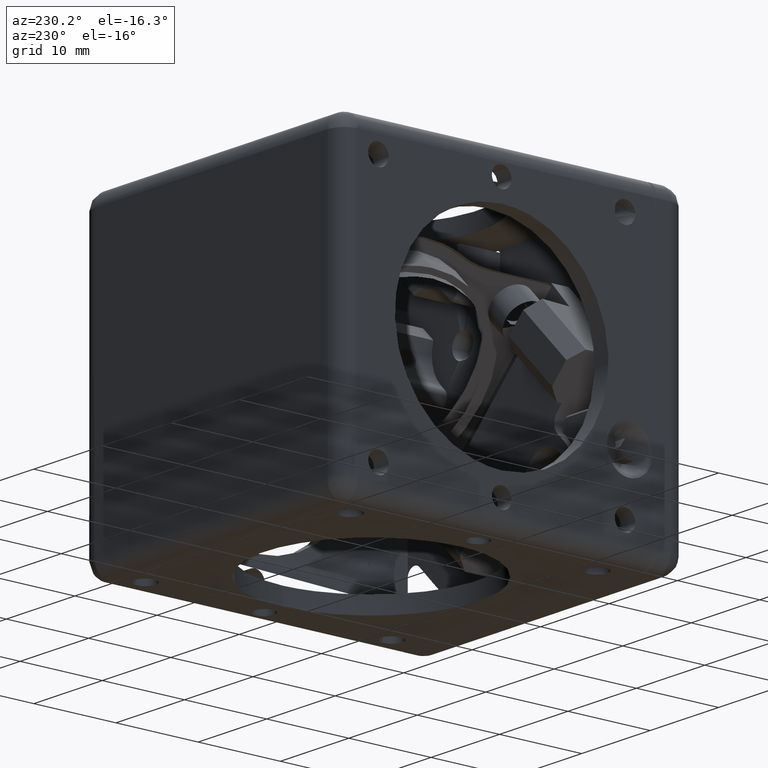
[diagram: clean part render]
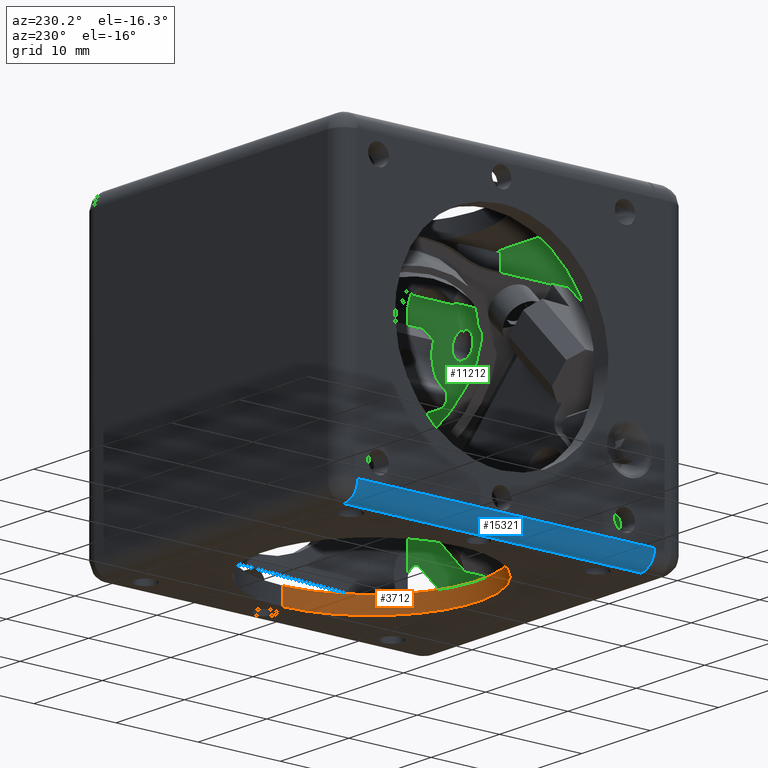
[diagram: same view with three faces highlighted in distinct colors, each labeled with its STEP entity id]
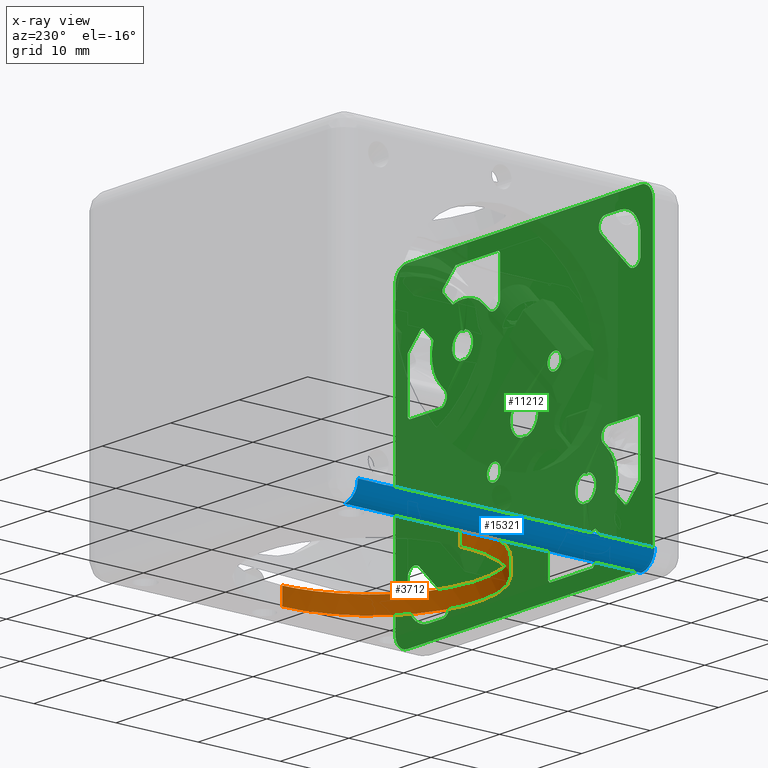
[diagram: x-ray of the same camera — body ghosted, the three highlighted faces saturated]
A machine part, auxiliary view with three faces highlighted in distinct colors.
The next image is the same camera in x-ray (body ghosted, the three faces saturated) — at least one of them is partly hidden behind the body in this view.
Their STEP definitions:

[orange] entity #3712 — the highlighted face is a freeform B-spline surface patch.
#538 = CARTESIAN_POINT ( 'NONE',  ( -13.00000000000010836, -5.400000000000005684, -19.25499999999988887 ) ) ;
#696 = CARTESIAN_POINT ( 'NONE',  ( -13.00000000000000533, -5.400000000000005684, -16.79499999999991644 ) ) ;
#1725 = CARTESIAN_POINT ( 'NONE',  ( 13.00000000000000000, 20.60000000000000142, -19.05000000000000071 ) ) ;
#1950 = EDGE_CURVE ( 'NONE', #9663, #7890, #5453, .T. ) ;
#2693 = CARTESIAN_POINT ( 'NONE',  ( -13.00000000000000000, 20.60000000000000142, -17.00000000000000000 ) ) ;
#2836 = CARTESIAN_POINT ( 'NONE',  ( -13.00000000000000000, 20.60000000000000142, -19.25500000000000256 ) ) ;
#2914 = CARTESIAN_POINT ( 'NONE',  ( -13.00000000000000000, 20.60000000000000142, -16.79500000000000171 ) ) ;
#3712 = ADVANCED_FACE ( 'NONE', ( #10164 ), #14291, .T. ) ;
#3796 = VERTEX_POINT ( 'NONE', #11748 ) ;
#4357 = B_SPLINE_CURVE_WITH_KNOTS ( 'NONE', 1,
 ( #10420, #15267 ),
 .UNSPECIFIED., .F., .F.,
 ( 2, 2 ),
 ( 0.000000000000000000, 1.000000000000000000 ),
 .UNSPECIFIED. ) ;
#4688 = ORIENTED_EDGE ( 'NONE', *, *, #6523, .T. ) ;
#4781 = CARTESIAN_POINT ( 'NONE',  ( 13.00000000000000000, 20.60000000000000142, -17.00000000000000000 ) ) ;
#5047 = ORIENTED_EDGE ( 'NONE', *, *, #1950, .T. ) ;
#5278 = CARTESIAN_POINT ( 'NONE',  ( 13.00000000000000000, 20.60000000000000142, -17.00000000000000000 ) ) ;
#5453 =( BOUNDED_CURVE ( )  B_SPLINE_CURVE ( 3, ( #1725, #10246, #5530, #11289 ),
 .UNSPECIFIED., .F., .F. ) 
 B_SPLINE_CURVE_WITH_KNOTS ( ( 4, 4 ),
 ( 0.000000000000000000, 1.000000000000000000 ),
 .UNSPECIFIED. ) 
 CURVE ( )  GEOMETRIC_REPRESENTATION_ITEM ( )  RATIONAL_B_SPLINE_CURVE ( ( 1.000000000000000000, 0.3333333333333330373, 0.3333333333333330373, 1.000000000000000000 ) ) 
 REPRESENTATION_ITEM ( '' )  );
#5530 = CARTESIAN_POINT ( 'NONE',  ( -13.00000000000009948, -5.400000000000005684, -19.04999999999989413 ) ) ;
#6523 = EDGE_CURVE ( 'NONE', #7890, #9676, #4357, .T. ) ;
#7123 = EDGE_CURVE ( 'NONE', #3796, #9663, #13717, .T. ) ;
#7890 = VERTEX_POINT ( 'NONE', #11369 ) ;
#8277 = CARTESIAN_POINT ( 'NONE',  ( 13.00000000000000000, 20.60000000000000142, -19.05000000000000071 ) ) ;
#8662 = CARTESIAN_POINT ( 'NONE',  ( 13.00000000000000000, 20.60000000000000142, -19.05000000000000071 ) ) ;
#8967 = CARTESIAN_POINT ( 'NONE',  ( 12.99999999999989875, -5.400000000000005684, -19.25500000000000966 ) ) ;
#9025 = CARTESIAN_POINT ( 'NONE',  ( -13.00000000000000000, 20.60000000000000142, -17.00000000000000000 ) ) ;
#9087 = EDGE_LOOP ( 'NONE', ( #12175, #15154, #5047, #4688 ) ) ;
#9663 = VERTEX_POINT ( 'NONE', #8662 ) ;
#9676 = VERTEX_POINT ( 'NONE', #2693 ) ;
#10164 = FACE_OUTER_BOUND ( 'NONE', #9087, .T. ) ;
#10246 = CARTESIAN_POINT ( 'NONE',  ( 12.99999999999989519, -5.400000000000005684, -19.05000000000001137 ) ) ;
#10324 = CARTESIAN_POINT ( 'NONE',  ( 12.99999999999989875, -5.400000000000005684, -16.79500000000000881 ) ) ;
#10420 = CARTESIAN_POINT ( 'NONE',  ( -13.00000000000000000, 20.60000000000000142, -19.05000000000000071 ) ) ;
#11289 = CARTESIAN_POINT ( 'NONE',  ( -13.00000000000000000, 20.60000000000000142, -19.05000000000000071 ) ) ;
#11369 = CARTESIAN_POINT ( 'NONE',  ( -13.00000000000000000, 20.60000000000000142, -19.05000000000000071 ) ) ;
#11748 = CARTESIAN_POINT ( 'NONE',  ( 13.00000000000000000, 20.60000000000000142, -17.00000000000000000 ) ) ;
#12175 = ORIENTED_EDGE ( 'NONE', *, *, #13397, .T. ) ;
#12709 = CARTESIAN_POINT ( 'NONE',  ( 13.00000000000000000, 20.60000000000000142, -19.25500000000000256 ) ) ;
#13397 = EDGE_CURVE ( 'NONE', #9676, #3796, #14104, .T. ) ;
#13656 = CARTESIAN_POINT ( 'NONE',  ( 12.99999999999989875, -5.400000000000005684, -17.00000000000000711 ) ) ;
#13717 = B_SPLINE_CURVE_WITH_KNOTS ( 'NONE', 1,
 ( #4781, #8277 ),
 .UNSPECIFIED., .F., .F.,
 ( 2, 2 ),
 ( 0.000000000000000000, 1.000000000000000000 ),
 .UNSPECIFIED. ) ;
#13879 = CARTESIAN_POINT ( 'NONE',  ( -13.00000000000001599, -5.400000000000005684, -16.99999999999991473 ) ) ;
#14104 =( BOUNDED_CURVE ( )  B_SPLINE_CURVE ( 3, ( #9025, #13879, #13656, #5278 ),
 .UNSPECIFIED., .F., .F. ) 
 B_SPLINE_CURVE_WITH_KNOTS ( ( 4, 4 ),
 ( 0.000000000000000000, 1.000000000000000000 ),
 .UNSPECIFIED. ) 
 CURVE ( )  GEOMETRIC_REPRESENTATION_ITEM ( )  RATIONAL_B_SPLINE_CURVE ( ( 1.000000000000000000, 0.3333333333333329818, 0.3333333333333329818, 1.000000000000000000 ) ) 
 REPRESENTATION_ITEM ( '' )  );
#14291 =( BOUNDED_SURFACE ( )  B_SPLINE_SURFACE ( 1, 3, ( 
 ( #2836, #538, #8967, #12709 ),
 ( #2914, #696, #10324, #15170 ) ),
 .UNSPECIFIED., .F., .F., .F. ) 
 B_SPLINE_SURFACE_WITH_KNOTS ( ( 2, 2 ),
 ( 4, 4 ),
 ( 0.000000000000000000, 1.000000000000000000 ),
 ( 0.000000000000000000, 1.000000000000000000 ),
 .UNSPECIFIED. ) 
 GEOMETRIC_REPRESENTATION_ITEM ( )  RATIONAL_B_SPLINE_SURFACE ( (
 ( 1.000000000000000000, 0.3333333333333329818, 0.3333333333333329818, 1.000000000000000000),
 ( 1.000000000000000000, 0.3333333333333329818, 0.3333333333333329818, 1.000000000000000000) ) ) 
 REPRESENTATION_ITEM ( '' )  SURFACE ( )  );
#15154 = ORIENTED_EDGE ( 'NONE', *, *, #7123, .T. ) ;
#15170 = CARTESIAN_POINT ( 'NONE',  ( 13.00000000000000000, 20.60000000000000142, -16.79500000000000171 ) ) ;
#15267 = CARTESIAN_POINT ( 'NONE',  ( -13.00000000000000000, 20.60000000000000142, -17.00000000000000000 ) ) ;

[blue] entity #15321 — the highlighted face is a freeform B-spline surface patch.
#839 = CARTESIAN_POINT ( 'NONE',  ( -18.65143750635702702, 1.999999999999999112, -18.27688607091769413 ) ) ;
#999 = CARTESIAN_POINT ( 'NONE',  ( -17.05000000000000071, 2.000000000000000000, -19.05000000000000071 ) ) ;
#1030 = CARTESIAN_POINT ( 'NONE',  ( -18.22157287525379488, 38.10000000000012221, -19.05000000000002913 ) ) ;
#1168 = CARTESIAN_POINT ( 'NONE',  ( -19.05000000000000071, 2.000000000000000000, -17.05000000000000071 ) ) ;
#1480 = EDGE_CURVE ( 'NONE', #4510, #7824, #7828, .T. ) ;
#1524 = CARTESIAN_POINT ( 'NONE',  ( -17.05000000000000071, 2.000000000000000000, -19.05000000000000071 ) ) ;
#1841 = ORIENTED_EDGE ( 'NONE', *, *, #7580, .T. ) ;
#2094 = ORIENTED_EDGE ( 'NONE', *, *, #1480, .T. ) ;
#2224 = CARTESIAN_POINT ( 'NONE',  ( -17.05000000000000071, 38.10000000000000142, -19.05000000000000071 ) ) ;
#2271 = CARTESIAN_POINT ( 'NONE',  ( -17.05000000000000071, 38.10000000000000142, -19.05000000000000071 ) ) ;
#2398 = CARTESIAN_POINT ( 'NONE',  ( -18.27698961838937919, 1.999999999999998668, -18.65154105382849181 ) ) ;
#2405 =( BOUNDED_CURVE ( )  B_SPLINE_CURVE ( 3, ( #9534, #11769, #1030, #2224 ),
 .UNSPECIFIED., .F., .F. ) 
 B_SPLINE_CURVE_WITH_KNOTS ( ( 4, 4 ),
 ( 0.000000000000000000, 1.000000000000000000 ),
 .UNSPECIFIED. ) 
 CURVE ( )  GEOMETRIC_REPRESENTATION_ITEM ( )  RATIONAL_B_SPLINE_CURVE ( ( 1.000000000000000000, 0.8047378541243609407, 0.8047378541243609407, 1.000000000000000000 ) ) 
 REPRESENTATION_ITEM ( '' )  );
#3284 = FACE_OUTER_BOUND ( 'NONE', #12149, .T. ) ;
#3494 = EDGE_CURVE ( 'NONE', #7824, #13342, #2405, .T. ) ;
#3577 = CARTESIAN_POINT ( 'NONE',  ( -19.05000000000000426, 2.000000000000000000, -17.31502475384923301 ) ) ;
#4090 = EDGE_CURVE ( 'NONE', #4510, #6837, #15137, .T. ) ;
#4510 = VERTEX_POINT ( 'NONE', #12734 ) ;
#4716 = CARTESIAN_POINT ( 'NONE',  ( -17.05000000000000071, 2.000000000000000000, -19.05000000000000071 ) ) ;
#5913 = CARTESIAN_POINT ( 'NONE',  ( -19.05000000000002913, 38.10000000000011511, -18.22157287525379488 ) ) ;
#5969 = CARTESIAN_POINT ( 'NONE',  ( -18.79647383030667385, 1.999999999999999556, -18.06008239373556279 ) ) ;
#5995 = CARTESIAN_POINT ( 'NONE',  ( -19.05000000000000071, 38.10000000000000142, -17.05000000000000071 ) ) ;
#6045 = CARTESIAN_POINT ( 'NONE',  ( -17.05000000000000071, 2.000000000000000000, -19.05000000000000071 ) ) ;
#6208 = CARTESIAN_POINT ( 'NONE',  ( -17.05000000000000071, 38.10000000000000142, -19.05000000000000071 ) ) ;
#6837 = VERTEX_POINT ( 'NONE', #4716 ) ;
#6965 = CARTESIAN_POINT ( 'NONE',  ( -19.05000000000000071, 38.10000000000000142, -17.05000000000000071 ) ) ;
#7117 = CARTESIAN_POINT ( 'NONE',  ( -17.05000000000000071, 38.10000000000000142, -19.05000000000000071 ) ) ;
#7580 = EDGE_CURVE ( 'NONE', #13342, #6837, #10105, .T. ) ;
#7824 = VERTEX_POINT ( 'NONE', #8824 ) ;
#7828 = B_SPLINE_CURVE_WITH_KNOTS ( 'NONE', 1,
 ( #1168, #6965 ),
 .UNSPECIFIED., .F., .F.,
 ( 2, 2 ),
 ( 0.000000000000000000, 1.000000000000000000 ),
 .UNSPECIFIED. ) ;
#8073 = CARTESIAN_POINT ( 'NONE',  ( -18.22157287525379488, 38.10000000000011511, -19.05000000000002913 ) ) ;
#8824 = CARTESIAN_POINT ( 'NONE',  ( -19.05000000000000071, 38.10000000000000142, -17.05000000000000071 ) ) ;
#9534 = CARTESIAN_POINT ( 'NONE',  ( -19.05000000000000071, 38.10000000000000142, -17.05000000000000071 ) ) ;
#9628 = ORIENTED_EDGE ( 'NONE', *, *, #3494, .T. ) ;
#10105 = B_SPLINE_CURVE_WITH_KNOTS ( 'NONE', 1,
 ( #6208, #1524 ),
 .UNSPECIFIED., .F., .F.,
 ( 2, 2 ),
 ( 0.000000000000000000, 1.000000000000000000 ),
 .UNSPECIFIED. ) ;
#10159 =( BOUNDED_SURFACE ( )  B_SPLINE_SURFACE ( 3, 1, ( 
 ( #999, #2271 ),
 ( #15718, #8073 ),
 ( #11975, #5913 ),
 ( #13096, #5995 ) ),
 .UNSPECIFIED., .F., .F., .F. ) 
 B_SPLINE_SURFACE_WITH_KNOTS ( ( 4, 4 ),
 ( 2, 2 ),
 ( 0.000000000000000000, 1.000000000000000000 ),
 ( 0.000000000000000000, 1.000000000000000000 ),
 .UNSPECIFIED. ) 
 GEOMETRIC_REPRESENTATION_ITEM ( )  RATIONAL_B_SPLINE_SURFACE ( (
 ( 1.000000000000000000, 1.000000000000000000),
 ( 0.8047378541243609407, 0.8047378541243609407),
 ( 0.8047378541243609407, 0.8047378541243609407),
 ( 1.000000000000000000, 1.000000000000000000) ) ) 
 REPRESENTATION_ITEM ( '' )  SURFACE ( )  );
#10840 = CARTESIAN_POINT ( 'NONE',  ( -18.06020348209824178, 1.999999999999998668, -18.79626510837097797 ) ) ;
#11734 = CARTESIAN_POINT ( 'NONE',  ( -18.99904429973850384, 2.000000000000000000, -17.57065133572486459 ) ) ;
#11769 = CARTESIAN_POINT ( 'NONE',  ( -19.05000000000002913, 38.10000000000012221, -18.22157287525379488 ) ) ;
#11975 = CARTESIAN_POINT ( 'NONE',  ( -19.05000000000002913, 1.999999999999991118, -18.22157287525379488 ) ) ;
#12149 = EDGE_LOOP ( 'NONE', ( #2094, #9628, #1841, #15357 ) ) ;
#12734 = CARTESIAN_POINT ( 'NONE',  ( -19.05000000000000071, 2.000000000000000000, -17.05000000000000071 ) ) ;
#12777 = CARTESIAN_POINT ( 'NONE',  ( -19.05000000000000071, 2.000000000000000000, -17.05000000000000071 ) ) ;
#13096 = CARTESIAN_POINT ( 'NONE',  ( -19.05000000000000071, 2.000000000000000000, -17.05000000000000071 ) ) ;
#13342 = VERTEX_POINT ( 'NONE', #7117 ) ;
#14565 = CARTESIAN_POINT ( 'NONE',  ( -17.57053024736218561, 1.999999999999997780, -18.99925302167419616 ) ) ;
#15137 = B_SPLINE_CURVE_WITH_KNOTS ( 'NONE', 3,
 ( #12777, #3577, #11734, #5969, #839, #2398, #10840, #14565, #15687, #6045 ),
 .UNSPECIFIED., .F., .F.,
 ( 4, 2, 2, 2, 4 ),
 ( 0.000000000000000000, 0.2500000000000000000, 0.5000000000000000000, 0.7500000000000000000, 1.000000000000000000 ),
 .UNSPECIFIED. ) ;
#15321 = ADVANCED_FACE ( 'NONE', ( #3284 ), #10159, .T. ) ;
#15357 = ORIENTED_EDGE ( 'NONE', *, *, #4090, .F. ) ;
#15687 = CARTESIAN_POINT ( 'NONE',  ( -17.31540795911881858, 1.999999999999997335, -19.05000000000000071 ) ) ;
#15718 = CARTESIAN_POINT ( 'NONE',  ( -18.22157287525379488, 1.999999999999991118, -19.05000000000002913 ) ) ;

[green] entity #11212 — the highlighted face is a freeform B-spline surface patch.
#12 = B_SPLINE_CURVE_WITH_KNOTS ( 'NONE', 3,
 ( #12501, #13463, #12267, #1590, #8601, #1361, #405, #7553, #14799, #11073 ),
 .UNSPECIFIED., .F., .F.,
 ( 4, 2, 2, 2, 4 ),
 ( 0.000000000000000000, 0.2500000000000000000, 0.5000000000000000000, 0.7500000000000000000, 1.000000000000000000 ),
 .UNSPECIFIED. ) ;
#36 = EDGE_LOOP ( 'NONE', ( #5463, #12454, #12778, #4206, #6084, #10335 ) ) ;
#58 = EDGE_CURVE ( 'NONE', #3520, #6240, #704, .T. ) ;
#66 = CARTESIAN_POINT ( 'NONE',  ( 15.99882722459183171, 2.000000000000000000, -10.89486576310442167 ) ) ;
#79 = CARTESIAN_POINT ( 'NONE',  ( 17.93407825758657737, 2.000000000000000000, -18.57798196982461292 ) ) ;
#105 = CARTESIAN_POINT ( 'NONE',  ( 4.419417382415880446, 2.000000000000000000, -3.419417382415869788 ) ) ;
#129 = CARTESIAN_POINT ( 'NONE',  ( -4.924586598528547299, 1.999999999999999556, 5.292568817002876180 ) ) ;
#184 = EDGE_LOOP ( 'NONE', ( #11297, #9706, #9351, #13871, #12887, #13535, #11439, #3109 ) ) ;
#214 = CARTESIAN_POINT ( 'NONE',  ( 15.29289321881345032, 2.000000000000000000, -11.20710678118654080 ) ) ;
#245 = EDGE_CURVE ( 'NONE', #10950, #760, #7313, .T. ) ;
#282 = CARTESIAN_POINT ( 'NONE',  ( -10.89484637153837809, 1.999999999999999556, 15.99882336735571364 ) ) ;
#297 = CARTESIAN_POINT ( 'NONE',  ( 13.24490824619010176, 2.000000000000000000, 10.41648112144399896 ) ) ;
#306 = CARTESIAN_POINT ( 'NONE',  ( 18.80000000000000071, 2.000000000000000000, -17.05000000000000071 ) ) ;
#338 = VERTEX_POINT ( 'NONE', #12087 ) ;
#348 = CARTESIAN_POINT ( 'NONE',  ( -8.778045875033566148, 2.000000000000000000, -10.50525612106911666 ) ) ;
#370 = CARTESIAN_POINT ( 'NONE',  ( 13.24490824619010176, 2.000000000000000000, 10.41648112144399896 ) ) ;
#384 = CARTESIAN_POINT ( 'NONE',  ( 18.12337079402520601, 2.000000000000000000, -18.45151231561264993 ) ) ;
#388 = CARTESIAN_POINT ( 'NONE',  ( 17.93406732324035957, 2.000000000000000000, 18.57800085085428776 ) ) ;
#392 = CARTESIAN_POINT ( 'NONE',  ( 11.42994804802387243, 2.000000000000000444, 3.934648266542605466 ) ) ;
#404 = EDGE_CURVE ( 'NONE', #14791, #6509, #9698, .T. ) ;
#405 = CARTESIAN_POINT ( 'NONE',  ( 4.501172775385541946, 2.000000000000000000, 11.25882679377334128 ) ) ;
#420 = ORIENTED_EDGE ( 'NONE', *, *, #2672, .T. ) ;
#427 = ORIENTED_EDGE ( 'NONE', *, *, #6972, .T. ) ;
#449 = CARTESIAN_POINT ( 'NONE',  ( 14.73743686707640066, 2.000000000000000000, 11.90900974233029963 ) ) ;
#467 = CARTESIAN_POINT ( 'NONE',  ( 18.57798196982459515, 2.000000000000000000, 17.93407825750138329 ) ) ;
#470 = CARTESIAN_POINT ( 'NONE',  ( 9.182466367103076621, 2.000000000000000000, 7.455256121069106179 ) ) ;
#502 = CARTESIAN_POINT ( 'NONE',  ( 16.75000000000000000, 2.000000000000000000, 3.500000000000079936 ) ) ;
#529 = EDGE_CURVE ( 'NONE', #4327, #10644, #10662, .T. ) ;
#536 = CARTESIAN_POINT ( 'NONE',  ( 10.97201019240084641, 2.000000000000000000, -15.61099598855773607 ) ) ;
#546 = B_SPLINE_CURVE_WITH_KNOTS ( 'NONE', 3,
 ( #9167, #5413, #15057, #7809, #1767, #3110, #7963, #12839, #14980, #1928 ),
 .UNSPECIFIED., .F., .F.,
 ( 4, 2, 2, 2, 4 ),
 ( 0.000000000000000000, 0.2500000000000000000, 0.5000000000000000000, 0.7500000000000000000, 1.000000000000000000 ),
 .UNSPECIFIED. ) ;
#593 = EDGE_CURVE ( 'NONE', #10258, #10061, #6275, .T. ) ;
#596 = B_SPLINE_CURVE_WITH_KNOTS ( 'NONE', 3,
 ( #14036, #3271, #9256, #8060, #14185, #2021, #1941, #10459, #7981, #4399, #8139, #6630, #6783, #906, #11651, #9413, #5509, #5662 ),
 .UNSPECIFIED., .F., .F.,
 ( 4, 2, 2, 2, 2, 2, 2, 2, 4 ),
 ( 0.000000000000000000, 0.1250000000000000000, 0.2500000000000000000, 0.3750000000000000000, 0.5000000000000000000, 0.6250000000000000000, 0.7500000000000000000, 0.8750000000000000000, 1.000000000000000000 ),
 .UNSPECIFIED. ) ;
#619 = CARTESIAN_POINT ( 'NONE',  ( 4.552008299139743031, 2.000000000000000000, -5.419417382415884887 ) ) ;
#625 = CARTESIAN_POINT ( 'NONE',  ( 9.377042698605652760, 2.000000000000000000, 7.493969572927904998 ) ) ;
#626 = CARTESIAN_POINT ( 'NONE',  ( 8.209858229898101101, 2.000000000000000000, 10.31180214708907528 ) ) ;
#639 = CARTESIAN_POINT ( 'NONE',  ( -10.50524949175182066, 2.000000000000000000, -8.778061881126060229 ) ) ;
#646 = CARTESIAN_POINT ( 'NONE',  ( 16.75000000000000000, 2.000000000000000000, 3.500000000000079936 ) ) ;
#664 = CARTESIAN_POINT ( 'NONE',  ( 17.00000000000000000, 2.000000000000000000, -11.91421356237309936 ) ) ;
#704 = B_SPLINE_CURVE_WITH_KNOTS ( 'NONE', 1,
 ( #6537, #13865 ),
 .UNSPECIFIED., .F., .F.,
 ( 2, 2 ),
 ( 0.000000000000000000, 1.000000000000000000 ),
 .UNSPECIFIED. ) ;
#718 = CARTESIAN_POINT ( 'NONE',  ( -10.46654266919572684, 2.000000000000000000, -9.377042698622345185 ) ) ;
#720 = CARTESIAN_POINT ( 'NONE',  ( -17.00000000000000000, 2.000000000000000000, 11.91421356237309936 ) ) ;
#727 = VERTEX_POINT ( 'NONE', #2315 ) ;
#760 = VERTEX_POINT ( 'NONE', #15521 ) ;
#772 = CARTESIAN_POINT ( 'NONE',  ( -8.361083498043575091, 2.000000000000000444, -13.45711095105773936 ) ) ;
#783 = CARTESIAN_POINT ( 'NONE',  ( 12.70858780562324242, 2.000000000000000444, 6.425816652676371810 ) ) ;
#793 = CARTESIAN_POINT ( 'NONE',  ( -15.09099025766980162, 2.000000000000000000, -11.90900974233020015 ) ) ;
#798 = CARTESIAN_POINT ( 'NONE',  ( -10.20157156820013000, 2.000000000000000444, -8.044886510307291516 ) ) ;
#804 = CARTESIAN_POINT ( 'NONE',  ( -18.75557751291433917, 2.000000000000000000, 17.50532469005064584 ) ) ;
#812 = B_SPLINE_CURVE_WITH_KNOTS ( 'NONE', 1,
 ( #6008, #7048 ),
 .UNSPECIFIED., .F., .F.,
 ( 2, 2 ),
 ( 0.000000000000000000, 1.000000000000000000 ),
 .UNSPECIFIED. ) ;
#855 = EDGE_CURVE ( 'NONE', #11263, #338, #14427, .T. ) ;
#878 = CARTESIAN_POINT ( 'NONE',  ( -3.618570669696700381, 2.000000000000000000, 5.032774857609107144 ) ) ;
#906 = CARTESIAN_POINT ( 'NONE',  ( -1.242038906910450269, 2.000000000000000444, -1.621752932558913507 ) ) ;
#919 = CARTESIAN_POINT ( 'NONE',  ( -15.43276981394939362, 2.000000000000000000, 11.06723018605060638 ) ) ;
#926 = CARTESIAN_POINT ( 'NONE',  ( 4.159219733800219920, 2.000000000000000000, -3.444809751980995483 ) ) ;
#940 = B_SPLINE_CURVE_WITH_KNOTS ( 'NONE', 3,
 ( #5893, #13075, #11876, #978 ),
 .UNSPECIFIED., .F., .F.,
 ( 4, 4 ),
 ( 0.000000000000000000, 1.000000000000000000 ),
 .UNSPECIFIED. ) ;
#969 = CARTESIAN_POINT ( 'NONE',  ( 17.00000000000000000, 2.000000000000000000, -11.91421356237309936 ) ) ;
#978 = CARTESIAN_POINT ( 'NONE',  ( 15.09099025766970037, 2.000000000000000000, 11.90900974233029963 ) ) ;
#1008 = CARTESIAN_POINT ( 'NONE',  ( 3.914237230740956086, 2.000000000000000000, -5.292549936601347760 ) ) ;
#1046 = CARTESIAN_POINT ( 'NONE',  ( 10.00000000000000000, 2.000000000000000000, 17.00000000000000000 ) ) ;
#1049 = CARTESIAN_POINT ( 'NONE',  ( 16.92367076143505145, 1.999999999999944489, -14.78082073729053825 ) ) ;
#1088 = CARTESIAN_POINT ( 'NONE',  ( -11.27864207304733668, 2.000000000000000000, -4.299984868746659750 ) ) ;
#1156 = CARTESIAN_POINT ( 'NONE',  ( -4.419417382415970152, 2.000000000000000000, 3.419417382415970152 ) ) ;
#1170 = ORIENTED_EDGE ( 'NONE', *, *, #1499, .T. ) ;
#1173 = B_SPLINE_CURVE_WITH_KNOTS ( 'NONE', 1,
 ( #12981, #9621 ),
 .UNSPECIFIED., .F., .F.,
 ( 2, 2 ),
 ( 0.000000000000000000, 1.000000000000000000 ),
 .UNSPECIFIED. ) ;
#1183 = EDGE_CURVE ( 'NONE', #4928, #15279, #10490, .T. ) ;
#1189 = B_SPLINE_CURVE_WITH_KNOTS ( 'NONE', 3,
 ( #7607, #4188, #2834, #10082, #15012, #15090, #7683, #3947, #1802, #10008 ),
 .UNSPECIFIED., .F., .F.,
 ( 4, 2, 2, 2, 4 ),
 ( 0.000000000000000000, 0.2500000000000000000, 0.5000000000000000000, 0.7500000000000000000, 1.000000000000000000 ),
 .UNSPECIFIED. ) ;
#1241 = CARTESIAN_POINT ( 'NONE',  ( -11.91421356237309936, 2.000000000000000000, 17.00000000000000000 ) ) ;
#1289 = CARTESIAN_POINT ( 'NONE',  ( -13.11610743324030359, 2.000000000000000000, -7.158095791222309323 ) ) ;
#1320 = ORIENTED_EDGE ( 'NONE', *, *, #14226, .F. ) ;
#1328 = CARTESIAN_POINT ( 'NONE',  ( 16.72163345805623180, 1.999999999999999556, -11.19424411410813036 ) ) ;
#1333 = CARTESIAN_POINT ( 'NONE',  ( -18.80000000000000071, 2.000000000000000000, -18.80000000000000071 ) ) ;
#1345 = CARTESIAN_POINT ( 'NONE',  ( -11.20710678118649994, 2.000000000000000000, 15.29289321881350006 ) ) ;
#1360 = CARTESIAN_POINT ( 'NONE',  ( 18.80000000000000071, 2.000000000000000000, 17.05000000000000071 ) ) ;
#1361 = CARTESIAN_POINT ( 'NONE',  ( 4.299977302505402221, 2.000000000000000444, 11.27862380660239516 ) ) ;
#1389 = CARTESIAN_POINT ( 'NONE',  ( 12.27817459305220105, 2.000000000000000000, 3.500000000000055067 ) ) ;
#1391 = CARTESIAN_POINT ( 'NONE',  ( -4.679615031033585559, 2.000000000000000000, 5.394025012851635381 ) ) ;
#1392 = ORIENTED_EDGE ( 'NONE', *, *, #12070, .T. ) ;
#1397 = ORIENTED_EDGE ( 'NONE', *, *, #5435, .F. ) ;
#1420 = CARTESIAN_POINT ( 'NONE',  ( 17.28208175347827691, 2.000000000000000000, -18.80000000000000426 ) ) ;
#1425 = CARTESIAN_POINT ( 'NONE',  ( -4.419417382415975482, 2.000000000000000000, 5.419417382415970152 ) ) ;
#1436 = CARTESIAN_POINT ( 'NONE',  ( -16.75000000000000000, 2.000000000000000000, -3.500000000000000000 ) ) ;
#1448 = EDGE_LOOP ( 'NONE', ( #1392, #8342 ) ) ;
#1464 = EDGE_CURVE ( 'NONE', #11941, #9133, #11619, .T. ) ;
#1492 = CARTESIAN_POINT ( 'NONE',  ( 10.89484637153891811, 1.999999999999999556, -15.99882336740994582 ) ) ;
#1499 = EDGE_CURVE ( 'NONE', #2088, #8224, #15624, .T. ) ;
#1568 = CARTESIAN_POINT ( 'NONE',  ( 11.06598701736086277, 2.000000000000000444, -16.56535173348044054 ) ) ;
#1584 = ORIENTED_EDGE ( 'NONE', *, *, #5857, .T. ) ;
#1590 = CARTESIAN_POINT ( 'NONE',  ( 3.778366541929690570, 1.999999999999999556, 11.55820514480593530 ) ) ;
#1639 = EDGE_CURVE ( 'NONE', #5504, #6114, #11016, .T. ) ;
#1648 = CARTESIAN_POINT ( 'NONE',  ( 17.50532469003744751, 2.000000000000000000, 18.75557751293521846 ) ) ;
#1660 = VERTEX_POINT ( 'NONE', #15426 ) ;
#1682 = CARTESIAN_POINT ( 'NONE',  ( -8.044886510307367899, 2.000000000000000444, -7.758940673938205634 ) ) ;
#1718 = CARTESIAN_POINT ( 'NONE',  ( 8.980256121069210451, 2.000000000000000000, 13.48025612106910032 ) ) ;
#1721 = CARTESIAN_POINT ( 'NONE',  ( 5.419424011162239374, 2.000000000000000444, -4.286842471162079171 ) ) ;
#1767 = CARTESIAN_POINT ( 'NONE',  ( -18.12336141855509908, 2.000000000000000000, -18.45150294012558589 ) ) ;
#1802 = CARTESIAN_POINT ( 'NONE',  ( -14.39801626763147624, 1.999999999999994005, 16.99999999999998934 ) ) ;
#1805 = CARTESIAN_POINT ( 'NONE',  ( 5.032784232069674069, 2.000000000000000444, -3.618561295235910968 ) ) ;
#1811 = CARTESIAN_POINT ( 'NONE',  ( 11.88699259084956417, 2.000000000000000444, 3.558677794074795120 ) ) ;
#1827 = CARTESIAN_POINT ( 'NONE',  ( -9.182466367104828109, 2.000000000000000000, -7.455256121069104402 ) ) ;
#1891 = CARTESIAN_POINT ( 'NONE',  ( 17.00000000000000000, 2.000000000000000000, 3.750000000000079492 ) ) ;
#1928 = CARTESIAN_POINT ( 'NONE',  ( -18.80000000000000071, 2.000000000000000000, -17.05000000000000071 ) ) ;
#1941 = CARTESIAN_POINT ( 'NONE',  ( -1.768100053468600441, 2.000000000000000000, 1.022991555084383108 ) ) ;
#1968 = CARTESIAN_POINT ( 'NONE',  ( 12.16223663640859876, 2.000000000000000000, 5.798275605729599214 ) ) ;
#1976 = EDGE_CURVE ( 'NONE', #15681, #10571, #9309, .T. ) ;
#2021 = CARTESIAN_POINT ( 'NONE',  ( -1.621752932562873895, 2.000000000000000444, 1.242038906906463680 ) ) ;
#2037 = CARTESIAN_POINT ( 'NONE',  ( -17.00000000000000000, 2.000000000000000000, 11.91421356237309936 ) ) ;
#2070 = CARTESIAN_POINT ( 'NONE',  ( -3.419410753669619663, 2.000000000000000444, 4.551992293667007417 ) ) ;
#2076 = VERTEX_POINT ( 'NONE', #11124 ) ;
#2088 = VERTEX_POINT ( 'NONE', #8400 ) ;
#2150 = EDGE_CURVE ( 'NONE', #760, #15681, #7952, .T. ) ;
#2167 = VERTEX_POINT ( 'NONE', #2680 ) ;
#2206 = ORIENTED_EDGE ( 'NONE', *, *, #6720, .T. ) ;
#2207 = CARTESIAN_POINT ( 'NONE',  ( 18.80000000000000426, 2.000000000000000000, 17.28208175356347098 ) ) ;
#2209 = CARTESIAN_POINT ( 'NONE',  ( -12.27817459305209979, 2.000000000000000000, -3.500000000000000000 ) ) ;
#2219 = ORIENTED_EDGE ( 'NONE', *, *, #10120, .T. ) ;
#2225 = CARTESIAN_POINT ( 'NONE',  ( 10.41648112144380001, 2.000000000000000000, 13.24490824619010176 ) ) ;
#2227 = CARTESIAN_POINT ( 'NONE',  ( -18.12337079404926854, 2.000000000000000444, 18.45151231558734750 ) ) ;
#2235 = B_SPLINE_CURVE_WITH_KNOTS ( 'NONE', 1,
 ( #4291, #720 ),
 .UNSPECIFIED., .F., .F.,
 ( 2, 2 ),
 ( 0.000000000000000000, 1.000000000000000000 ),
 .UNSPECIFIED. ) ;
#2261 = CARTESIAN_POINT ( 'NONE',  ( 6.712279629764562827, 2.000000000000000000, 12.91158729426219764 ) ) ;
#2262 = VERTEX_POINT ( 'NONE', #1389 ) ;
#2278 = CARTESIAN_POINT ( 'NONE',  ( 4.286791813482306424, 1.999999999999999112, -5.419417382415882223 ) ) ;
#2284 = CARTESIAN_POINT ( 'NONE',  ( 1.621743556908597839, 2.000000000000000444, 1.242029531233062256 ) ) ;
#2292 = VERTEX_POINT ( 'NONE', #2340 ) ;
#2315 = CARTESIAN_POINT ( 'NONE',  ( -8.980256121069199793, 1.862500000000000044, -7.592756121069110797 ) ) ;
#2317 = CARTESIAN_POINT ( 'NONE',  ( -13.45710188571200661, 2.000000000000000000, -8.361085623291970137 ) ) ;
#2325 = VERTEX_POINT ( 'NONE', #12051 ) ;
#2332 = CARTESIAN_POINT ( 'NONE',  ( -4.419417382415970152, 2.000000000000000000, 3.419417382415970152 ) ) ;
#2340 = CARTESIAN_POINT ( 'NONE',  ( 14.73743686707640066, 2.000000000000000000, 11.90900974233029963 ) ) ;
#2343 = CARTESIAN_POINT ( 'NONE',  ( -4.552008299143738057, 2.000000000000000000, 5.419417382415974593 ) ) ;
#2351 = CARTESIAN_POINT ( 'NONE',  ( 14.73743686707640066, 2.000000000000000000, 11.90900974233029963 ) ) ;
#2363 = CARTESIAN_POINT ( 'NONE',  ( -16.75000000000000000, 2.000000000000000000, -3.500000000000000000 ) ) ;
#2395 = CARTESIAN_POINT ( 'NONE',  ( 15.51540089418383772, 1.999999999999946265, -16.61939766255633799 ) ) ;
#2417 = EDGE_CURVE ( 'NONE', #9517, #13117, #12339, .T. ) ;
#2433 = CARTESIAN_POINT ( 'NONE',  ( -13.24490824619010176, 2.000000000000000000, -10.41648112144389948 ) ) ;
#2455 = CARTESIAN_POINT ( 'NONE',  ( -11.90900974233029963, 2.000000000000000000, -14.73743686707640066 ) ) ;
#2495 = CARTESIAN_POINT ( 'NONE',  ( 10.00000000000000000, 2.000000000000000000, 17.00000000000000000 ) ) ;
#2503 = CARTESIAN_POINT ( 'NONE',  ( -5.292556568681169971, 2.000000000000000000, 4.924581525100977686 ) ) ;
#2522 = B_SPLINE_CURVE_WITH_KNOTS ( 'NONE', 1,
 ( #14910, #7891 ),
 .UNSPECIFIED., .F., .F.,
 ( 2, 2 ),
 ( 0.000000000000000000, 1.000000000000000000 ),
 .UNSPECIFIED. ) ;
#2525 = B_SPLINE_CURVE_WITH_KNOTS ( 'NONE', 3,
 ( #9720, #8357, #6044, #14564, #2317, #10682, #1289, #13225, #3655, #5885 ),
 .UNSPECIFIED., .F., .F.,
 ( 4, 2, 2, 2, 4 ),
 ( 0.000000000000000000, 0.2500000000000000000, 0.5000000000000000000, 0.7500000000000000000, 1.000000000000000000 ),
 .UNSPECIFIED. ) ;
#2545 = EDGE_CURVE ( 'NONE', #2965, #9166, #7751, .T. ) ;
#2572 = CARTESIAN_POINT ( 'NONE',  ( 5.798275605729749316, 2.000000000000000000, 12.16223663640859876 ) ) ;
#2582 = EDGE_LOOP ( 'NONE', ( #14969, #12876, #10279, #14916, #15070, #4589, #5272, #4807 ) ) ;
#2602 = CARTESIAN_POINT ( 'NONE',  ( -3.750000000000000000, 2.000000000000000000, -17.00000000000000000 ) ) ;
#2619 = VERTEX_POINT ( 'NONE', #10340 ) ;
#2628 = B_SPLINE_CURVE_WITH_KNOTS ( 'NONE', 1,
 ( #12426, #2637 ),
 .UNSPECIFIED., .F., .F.,
 ( 2, 2 ),
 ( 0.000000000000000000, 1.000000000000000000 ),
 .UNSPECIFIED. ) ;
#2637 = CARTESIAN_POINT ( 'NONE',  ( 3.750000000000000000, 2.000000000000000000, 17.00000000000000000 ) ) ;
#2648 = VERTEX_POINT ( 'NONE', #15587 ) ;
#2655 = CARTESIAN_POINT ( 'NONE',  ( -8.209858229894487991, 1.999999999999999556, -10.31180214708758847 ) ) ;
#2661 = CARTESIAN_POINT ( 'NONE',  ( -4.679604095477931658, 2.000000000000000444, 3.444790871578868874 ) ) ;
#2672 = EDGE_CURVE ( 'NONE', #9166, #9138, #5663, .T. ) ;
#2680 = CARTESIAN_POINT ( 'NONE',  ( 15.09099025766970037, 2.000000000000000000, 11.90900974233029963 ) ) ;
#2690 = CARTESIAN_POINT ( 'NONE',  ( 17.05000000000000071, 2.000000000000000000, -18.80000000000000071 ) ) ;
#2724 = CARTESIAN_POINT ( 'NONE',  ( 10.41648112144380001, 2.000000000000000000, 13.24490824619010176 ) ) ;
#2727 = CARTESIAN_POINT ( 'NONE',  ( -7.455249491751854585, 2.000000000000000444, -8.778061881105685416 ) ) ;
#2761 = CARTESIAN_POINT ( 'NONE',  ( -13.93096440627116195, 2.000000000000000000, 12.56903559372882739 ) ) ;
#2766 = CARTESIAN_POINT ( 'NONE',  ( 10.31178989770523025, 2.000000000000000000, 8.209863303756652186 ) ) ;
#2782 = CARTESIAN_POINT ( 'NONE',  ( -13.24490824619010176, 2.000000000000000000, -10.41648112144389948 ) ) ;
#2800 = CARTESIAN_POINT ( 'NONE',  ( -8.980256121069185582, 2.000000000000000000, -10.50525612106911488 ) ) ;
#2834 = CARTESIAN_POINT ( 'NONE',  ( -16.92367076140425297, 1.999999999999997113, 14.78082073730251444 ) ) ;
#2850 = EDGE_CURVE ( 'NONE', #6740, #5598, #8489, .T. ) ;
#2896 = CARTESIAN_POINT ( 'NONE',  ( 11.91421356237309936, 2.000000000000000000, -17.00000000000000000 ) ) ;
#2912 = EDGE_CURVE ( 'NONE', #2262, #14869, #10217, .T. ) ;
#2921 = CARTESIAN_POINT ( 'NONE',  ( 17.00000000000000000, 2.000000000000000000, 10.00000000000000000 ) ) ;
#2923 = CARTESIAN_POINT ( 'NONE',  ( 11.33597122307834049, 2.000000000000000000, 4.889004011403282668 ) ) ;
#2938 = CARTESIAN_POINT ( 'NONE',  ( -9.750664946752609197, 2.000000000000000000, -10.31178326620198149 ) ) ;
#2956 = ORIENTED_EDGE ( 'NONE', *, *, #1464, .T. ) ;
#2962 = EDGE_CURVE ( 'NONE', #10792, #2325, #10983, .T. ) ;
#2965 = VERTEX_POINT ( 'NONE', #13163 ) ;
#2993 = CARTESIAN_POINT ( 'NONE',  ( 4.679615031036258088, 2.000000000000000000, -5.394025012848784328 ) ) ;
#2999 = CARTESIAN_POINT ( 'NONE',  ( 7.455262750390774684, 2.000000000000000000, 9.182450361026536001 ) ) ;
#3030 = EDGE_CURVE ( 'NONE', #6240, #12512, #6964, .T. ) ;
#3074 = CARTESIAN_POINT ( 'NONE',  ( 11.27864207305787758, 2.000000000000000000, 4.299984868727279697 ) ) ;
#3083 = EDGE_CURVE ( 'NONE', #14869, #8712, #6602, .T. ) ;
#3096 = CARTESIAN_POINT ( 'NONE',  ( -10.97201019240130471, 2.000000000000000000, 15.61099598861212101 ) ) ;
#3109 = ORIENTED_EDGE ( 'NONE', *, *, #12535, .T. ) ;
#3110 = CARTESIAN_POINT ( 'NONE',  ( -18.45151231559779248, 2.000000000000000444, -18.12337079402731277 ) ) ;
#3149 = CARTESIAN_POINT ( 'NONE',  ( 13.45710188571171884, 2.000000000000000000, 8.361085623299219449 ) ) ;
#3162 = CARTESIAN_POINT ( 'NONE',  ( -9.915625731837009127, 2.000000000000000444, -10.20157156819404953 ) ) ;
#3199 = EDGE_CURVE ( 'NONE', #14297, #5598, #4322, .T. ) ;
#3224 = CARTESIAN_POINT ( 'NONE',  ( 2.025006629591298069, 2.000000000000000444, 0.2684983624540305258 ) ) ;
#3271 = CARTESIAN_POINT ( 'NONE',  ( -0.2685143688537673934, 2.000000000000000000, 2.025000000000006128 ) ) ;
#3272 = CARTESIAN_POINT ( 'NONE',  ( 12.56903559372882739, 2.000000000000000000, -13.93096440627116195 ) ) ;
#3273 = CARTESIAN_POINT ( 'NONE',  ( -3.500000000000000000, 2.000000000000000000, -12.27817459305190084 ) ) ;
#3293 = CARTESIAN_POINT ( 'NONE',  ( 3.546278196150703721, 1.999999999999999556, -3.914253239728100464 ) ) ;
#3317 = CARTESIAN_POINT ( 'NONE',  ( -11.90900974233029963, 2.000000000000000000, -14.73743686707640066 ) ) ;
#3328 = ORIENTED_EDGE ( 'NONE', *, *, #2545, .T. ) ;
#3391 = CARTESIAN_POINT ( 'NONE',  ( 8.980256121069210451, 2.000000000000000000, 13.48025612106910032 ) ) ;
#3437 = CARTESIAN_POINT ( 'NONE',  ( 13.37864235026494697, 2.000000000000000000, 10.01937799972208154 ) ) ;
#3441 = CARTESIAN_POINT ( 'NONE',  ( -16.94130576657132536, 2.000000000000000000, 11.52304254460987920 ) ) ;
#3457 = CARTESIAN_POINT ( 'NONE',  ( 1.022996629161796012, 1.999999999999999556, -1.768112303347292524 ) ) ;
#3475 = B_SPLINE_CURVE_WITH_KNOTS ( 'NONE', 3,
 ( #6829, #1827, #6676, #10268, #9295, #798, #14152, #11535, #639, #14000, #718, #6909, #13844, #3162, #2938, #8023, #5548, #5477 ),
 .UNSPECIFIED., .F., .F.,
 ( 4, 2, 2, 2, 2, 2, 2, 2, 4 ),
 ( 0.000000000000000000, 0.1250000000000000000, 0.2500000000000000000, 0.3750000000000000000, 0.5000000000000000000, 0.6250000000000000000, 0.7500000000000000000, 0.8750000000000000000, 1.000000000000000000 ),
 .UNSPECIFIED. ) ;
#3499 = B_SPLINE_CURVE_WITH_KNOTS ( 'NONE', 1,
 ( #4951, #5254 ),
 .UNSPECIFIED., .F., .F.,
 ( 2, 2 ),
 ( 0.000000000000000000, 1.000000000000000000 ),
 .UNSPECIFIED. ) ;
#3520 = VERTEX_POINT ( 'NONE', #8333 ) ;
#3532 = CARTESIAN_POINT ( 'NONE',  ( -12.27817459305209979, 2.000000000000000000, -3.500000000000000000 ) ) ;
#3542 = FACE_BOUND ( 'NONE', #6626, .T. ) ;
#3572 = CARTESIAN_POINT ( 'NONE',  ( -15.09099025766980162, 2.000000000000000000, -11.90900974233020015 ) ) ;
#3616 = CARTESIAN_POINT ( 'NONE',  ( 4.159230669360607813, 2.000000000000000444, -5.394043893252976396 ) ) ;
#3619 = EDGE_CURVE ( 'NONE', #9517, #15623, #7357, .T. ) ;
#3638 = CARTESIAN_POINT ( 'NONE',  ( -3.546278196150811635, 2.000000000000000000, 3.914253239733733292 ) ) ;
#3655 = CARTESIAN_POINT ( 'NONE',  ( -12.45855081129037600, 2.000000000000000000, -6.094589780611371133 ) ) ;
#3665 = CARTESIAN_POINT ( 'NONE',  ( 3.750000000000000000, 2.000000000000000000, 17.00000000000000000 ) ) ;
#3676 = CARTESIAN_POINT ( 'NONE',  ( 10.63633658077672983, 2.000000000000000000, 16.36366341922326839 ) ) ;
#3746 = CARTESIAN_POINT ( 'NONE',  ( -15.29289321881350006, 2.000000000000000000, 11.20710678118649994 ) ) ;
#3809 = EDGE_LOOP ( 'NONE', ( #6160, #13355, #13508, #13220, #7224, #8598, #9423, #10465, #14739, #1320 ) ) ;
#3816 = CARTESIAN_POINT ( 'NONE',  ( -16.91666666666666075, 2.000000000000000000, -3.666666666666683838 ) ) ;
#3824 = CARTESIAN_POINT ( 'NONE',  ( 17.05000000000000071, 2.000000000000000000, -18.80000000000000071 ) ) ;
#3886 = EDGE_CURVE ( 'NONE', #7430, #10792, #10970, .T. ) ;
#3918 = CARTESIAN_POINT ( 'NONE',  ( 12.16223663640859876, 2.000000000000000000, 5.798275605729599214 ) ) ;
#3921 = CARTESIAN_POINT ( 'NONE',  ( -5.220264095135257243, 2.000000000000000000, 3.806059907220078031 ) ) ;
#3947 = CARTESIAN_POINT ( 'NONE',  ( -14.78069969999657829, 1.999999999999994449, 16.92387953251129318 ) ) ;
#3956 = CARTESIAN_POINT ( 'NONE',  ( 9.915625731815138622, 2.000000000000000444, 10.20157156820957844 ) ) ;
#3994 = CARTESIAN_POINT ( 'NONE',  ( -7.758950049212048228, 2.000000000000000000, -8.044895885581059503 ) ) ;
#4005 = CARTESIAN_POINT ( 'NONE',  ( -11.06727836375133300, 2.000000000000000000, 15.43272163624867055 ) ) ;
#4040 = CARTESIAN_POINT ( 'NONE',  ( 11.25880740221952259, 1.999999999999999556, 4.501176632629069196 ) ) ;
#4060 = EDGE_CURVE ( 'NONE', #10258, #2292, #7738, .T. ) ;
#4109 = CARTESIAN_POINT ( 'NONE',  ( 5.419410753669527736, 2.000000000000000000, -4.551992293669690604 ) ) ;
#4115 = CARTESIAN_POINT ( 'NONE',  ( 9.750664946768299757, 2.000000000000000000, 10.31178326620196373 ) ) ;
#4116 = CARTESIAN_POINT ( 'NONE',  ( 7.648722344428978914, 2.000000000000000444, 9.750648938374709473 ) ) ;
#4171 = CARTESIAN_POINT ( 'NONE',  ( -17.00000000000000000, 2.000000000000000000, -10.00000000000000000 ) ) ;
#4188 = CARTESIAN_POINT ( 'NONE',  ( -16.99999999999990052, 1.999999999999997113, 14.39763302400271705 ) ) ;
#4192 = CARTESIAN_POINT ( 'NONE',  ( 4.924597534090795037, 2.000000000000000000, -3.546284828230359398 ) ) ;
#4194 = CARTESIAN_POINT ( 'NONE',  ( 18.12336141860513550, 2.000000000000000444, 18.45150294005636482 ) ) ;
#4197 = CARTESIAN_POINT ( 'NONE',  ( 10.46655491859263520, 2.000000000000000444, 8.583464469668030006 ) ) ;
#4198 = CARTESIAN_POINT ( 'NONE',  ( 7.493957323550023197, 2.000000000000000444, 9.377047772477016707 ) ) ;
#4206 = ORIENTED_EDGE ( 'NONE', *, *, #5439, .T. ) ;
#4238 = ORIENTED_EDGE ( 'NONE', *, *, #7188, .F. ) ;
#4266 = CARTESIAN_POINT ( 'NONE',  ( 4.419417382415880446, 2.000000000000000000, -3.419417382415869788 ) ) ;
#4271 = CARTESIAN_POINT ( 'NONE',  ( 9.750654012246295466, 1.999999999999999556, 7.648710095050868851 ) ) ;
#4272 = CARTESIAN_POINT ( 'NONE',  ( 8.044886510327769358, 2.000000000000000444, 7.758940673926258746 ) ) ;
#4278 = CARTESIAN_POINT ( 'NONE',  ( 5.207106781186560340, 2.000000000000000000, 11.57106781186540090 ) ) ;
#4291 = CARTESIAN_POINT ( 'NONE',  ( -17.00000000000000000, 2.000000000000000000, 14.00000000000000000 ) ) ;
#4322 = B_SPLINE_CURVE_WITH_KNOTS ( 'NONE', 3,
 ( #13142, #7079, #1049, #14483, #12993, #5883, #2395, #10761, #15611, #4694 ),
 .UNSPECIFIED., .F., .F.,
 ( 4, 2, 2, 2, 4 ),
 ( 0.000000000000000000, 0.2500000000000000000, 0.5000000000000000000, 0.7500000000000000000, 1.000000000000000000 ),
 .UNSPECIFIED. ) ;
#4327 = VERTEX_POINT ( 'NONE', #12735 ) ;
#4350 = CARTESIAN_POINT ( 'NONE',  ( 8.980256121069201569, 2.000000000000000000, 7.455256121069106179 ) ) ;
#4399 = CARTESIAN_POINT ( 'NONE',  ( -2.025006629596892704, 2.000000000000000444, -0.2684983624349032705 ) ) ;
#4426 = CARTESIAN_POINT ( 'NONE',  ( 1.242029531223510119, 1.999999999999999556, -1.621743556923760154 ) ) ;
#4437 = EDGE_CURVE ( 'NONE', #13325, #9138, #8995, .T. ) ;
#4445 = CARTESIAN_POINT ( 'NONE',  ( -17.05000000000000071, 2.000000000000000000, 18.80000000000000071 ) ) ;
#4448 = CARTESIAN_POINT ( 'NONE',  ( -11.52303156016708208, 2.000000000000000444, 16.94132220591815852 ) ) ;
#4463 = CARTESIAN_POINT ( 'NONE',  ( 4.419417382415880446, 2.000000000000000000, -5.419417382415869788 ) ) ;
#4488 = CARTESIAN_POINT ( 'NONE',  ( -16.56534416725115832, 2.000000000000000000, 11.06600528381024340 ) ) ;
#4513 = ORIENTED_EDGE ( 'NONE', *, *, #10241, .T. ) ;
#4547 = CARTESIAN_POINT ( 'NONE',  ( -10.41648112144389948, 2.000000000000000000, -13.24490824619000051 ) ) ;
#4568 = EDGE_CURVE ( 'NONE', #727, #12674, #3475, .T. ) ;
#4574 = CARTESIAN_POINT ( 'NONE',  ( 3.419410753669517522, 2.000000000000000000, -4.551992293676359047 ) ) ;
#4581 = CARTESIAN_POINT ( 'NONE',  ( 1.973612053207729033, 2.000000000000000000, -0.5268763459592666898 ) ) ;
#4589 = ORIENTED_EDGE ( 'NONE', *, *, #15504, .T. ) ;
#4678 = CARTESIAN_POINT ( 'NONE',  ( -18.80000000000000071, 2.000000000000000000, 17.05000000000000071 ) ) ;
#4694 = CARTESIAN_POINT ( 'NONE',  ( 14.00000000000000000, 1.999999999999974909, -17.00000000000000000 ) ) ;
#4720 = ORIENTED_EDGE ( 'NONE', *, *, #10937, .T. ) ;
#4744 = CARTESIAN_POINT ( 'NONE',  ( -17.00000000000000000, 2.000000000000000000, -3.750000000000000000 ) ) ;
#4760 = CARTESIAN_POINT ( 'NONE',  ( -3.806059907224821348, 2.000000000000000000, 3.618570669691957509 ) ) ;
#4775 = CARTESIAN_POINT ( 'NONE',  ( -15.72732683844654034, 2.000000000000000000, -11.27267316155347388 ) ) ;
#4784 = CARTESIAN_POINT ( 'NONE',  ( -14.73743686707650014, 2.000000000000000000, -11.90900974233020015 ) ) ;
#4799 = EDGE_CURVE ( 'NONE', #7573, #11526, #6901, .T. ) ;
#4802 = CARTESIAN_POINT ( 'NONE',  ( 11.20710678118654080, 2.000000000000000000, -15.29289321881345032 ) ) ;
#4807 = ORIENTED_EDGE ( 'NONE', *, *, #12515, .T. ) ;
#4811 = CARTESIAN_POINT ( 'NONE',  ( -5.394025012850850231, 2.000000000000000000, 4.159219733800313179 ) ) ;
#4827 = CARTESIAN_POINT ( 'NONE',  ( -3.500000000000000000, 2.000000000000000000, -12.27817459305190084 ) ) ;
#4829 = FACE_OUTER_BOUND ( 'NONE', #184, .T. ) ;
#4843 = CARTESIAN_POINT ( 'NONE',  ( -3.419424011162310872, 2.000000000000000000, 4.286842471164911572 ) ) ;
#4866 = EDGE_CURVE ( 'NONE', #9133, #11941, #11091, .T. ) ;
#4928 = VERTEX_POINT ( 'NONE', #11831 ) ;
#4951 = CARTESIAN_POINT ( 'NONE',  ( 11.90900974233020015, 2.000000000000000000, 14.73743686707650014 ) ) ;
#4955 = CARTESIAN_POINT ( 'NONE',  ( 11.57106781186559985, 2.000000000000000000, 5.207106781186610078 ) ) ;
#4967 = CARTESIAN_POINT ( 'NONE',  ( -4.552042951356230382, 2.000000000000000444, 3.419417382415960827 ) ) ;
#5014 = CARTESIAN_POINT ( 'NONE',  ( -3.583333333333297066, 2.000000000000000000, -16.83333333333332860 ) ) ;
#5120 = CARTESIAN_POINT ( 'NONE',  ( -11.19425509853993184, 2.000000000000000000, 16.72161701868694905 ) ) ;
#5137 = B_SPLINE_CURVE_WITH_KNOTS ( 'NONE', 3,
 ( #12377, #2343, #1391, #129, #13573, #14591, #2503, #9827, #12053, #14676, #4811, #11024, #3921, #6073, #8629, #2661, #4967, #1156 ),
 .UNSPECIFIED., .F., .F.,
 ( 4, 2, 2, 2, 2, 2, 2, 2, 4 ),
 ( 0.000000000000000000, 0.1250000000000000000, 0.2500000000000000000, 0.3750000000000000000, 0.5000000000000000000, 0.6250000000000000000, 0.7500000000000000000, 0.8750000000000000000, 1.000000000000000000 ),
 .UNSPECIFIED. ) ;
#5142 = EDGE_LOOP ( 'NONE', ( #11329, #2206, #3328, #420, #10064, #5234, #1170, #11319 ) ) ;
#5184 = CARTESIAN_POINT ( 'NONE',  ( -8.980256121069185582, 2.000000000000000000, -7.455256121069106179 ) ) ;
#5197 = CARTESIAN_POINT ( 'NONE',  ( -10.91468104237497272, 2.000000000000000000, 16.20001513125342285 ) ) ;
#5220 = CARTESIAN_POINT ( 'NONE',  ( 17.50531375569124037, 2.000000000000000444, -18.75559639396492528 ) ) ;
#5225 = CARTESIAN_POINT ( 'NONE',  ( 18.45151231554778448, 2.000000000000000444, 18.12337079409656582 ) ) ;
#5230 = CARTESIAN_POINT ( 'NONE',  ( 7.648710095059681358, 2.000000000000000444, 8.209858229876987323 ) ) ;
#5234 = ORIENTED_EDGE ( 'NONE', *, *, #7107, .T. ) ;
#5254 = CARTESIAN_POINT ( 'NONE',  ( 10.41648112144380001, 2.000000000000000000, 13.24490824619010176 ) ) ;
#5272 = ORIENTED_EDGE ( 'NONE', *, *, #855, .T. ) ;
#5360 = VERTEX_POINT ( 'NONE', #13357 ) ;
#5370 = CARTESIAN_POINT ( 'NONE',  ( 11.20710678118654080, 2.000000000000000000, -15.29289321881345032 ) ) ;
#5379 = CARTESIAN_POINT ( 'NONE',  ( 12.08035921517675249, 2.000000000000000000, 3.500000000000031086 ) ) ;
#5413 = CARTESIAN_POINT ( 'NONE',  ( -17.28204710129293531, 2.000000000000000000, -18.79999999999999716 ) ) ;
#5435 = EDGE_CURVE ( 'NONE', #5360, #12415, #1189, .T. ) ;
#5439 = EDGE_CURVE ( 'NONE', #2325, #6740, #14659, .T. ) ;
#5449 = CARTESIAN_POINT ( 'NONE',  ( 11.52303156012962049, 2.000000000000000444, -16.94132220591031412 ) ) ;
#5458 = CARTESIAN_POINT ( 'NONE',  ( 9.915616356555172928, 2.000000000000000000, 7.758950049207738786 ) ) ;
#5459 = CARTESIAN_POINT ( 'NONE',  ( 7.758950049191684961, 2.000000000000000000, 8.044895885592968199 ) ) ;
#5463 = ORIENTED_EDGE ( 'NONE', *, *, #7102, .T. ) ;
#5477 = CARTESIAN_POINT ( 'NONE',  ( -8.980256121069185582, 2.000000000000000000, -10.50525612106911488 ) ) ;
#5504 = VERTEX_POINT ( 'NONE', #1718 ) ;
#5509 = CARTESIAN_POINT ( 'NONE',  ( -0.2685490210346237472, 2.000000000000000444, -2.024999999999985700 ) ) ;
#5513 = CARTESIAN_POINT ( 'NONE',  ( 3.500000000000000000, 2.000000000000000000, 12.27817459305190084 ) ) ;
#5533 = CARTESIAN_POINT ( 'NONE',  ( 12.45855081128052966, 2.000000000000000000, 6.094589780601479490 ) ) ;
#5534 = CARTESIAN_POINT ( 'NONE',  ( 8.778045875033587464, 2.000000000000000444, 10.50525612106909890 ) ) ;
#5548 = CARTESIAN_POINT ( 'NONE',  ( -9.182501019313708213, 2.000000000000000444, -10.50525612106911488 ) ) ;
#5591 = EDGE_CURVE ( 'NONE', #2076, #15623, #7263, .T. ) ;
#5598 = VERTEX_POINT ( 'NONE', #12793 ) ;
#5662 = CARTESIAN_POINT ( 'NONE',  ( 7.155583353436433307E-16, 2.000000000000000000, -2.024999999999985256 ) ) ;
#5663 = B_SPLINE_CURVE_WITH_KNOTS ( 'NONE', 1,
 ( #793, #9214 ),
 .UNSPECIFIED., .F., .F.,
 ( 2, 2 ),
 ( 0.000000000000000000, 1.000000000000000000 ),
 .UNSPECIFIED. ) ;
#5671 = CARTESIAN_POINT ( 'NONE',  ( 3.500000000000000000, 2.000000000000000000, 16.75000000000000000 ) ) ;
#5674 = CARTESIAN_POINT ( 'NONE',  ( -15.61099213136265362, 2.000000000000000444, 10.97199080084456391 ) ) ;
#5685 = ORIENTED_EDGE ( 'NONE', *, *, #4799, .T. ) ;
#5691 = CARTESIAN_POINT ( 'NONE',  ( 18.80000000000000071, 2.000000000000000000, 18.80000000000000071 ) ) ;
#5709 = CARTESIAN_POINT ( 'NONE',  ( -3.806050532762190741, 2.000000000000000444, 5.220273469595924531 ) ) ;
#5755 = CARTESIAN_POINT ( 'NONE',  ( -15.29289321881350006, 2.000000000000000000, 11.20710678118649994 ) ) ;
#5832 = CARTESIAN_POINT ( 'NONE',  ( -17.00000000000000000, 2.000000000000000000, 11.71646631803389838 ) ) ;
#5838 = CARTESIAN_POINT ( 'NONE',  ( -6.425836028666574329, 2.000000000000000000, -12.70858793266333642 ) ) ;
#5857 = EDGE_CURVE ( 'NONE', #11114, #2619, #596, .T. ) ;
#5883 = CARTESIAN_POINT ( 'NONE',  ( 15.84032826393757709, 1.999999999999946265, -16.40241603007396165 ) ) ;
#5885 = CARTESIAN_POINT ( 'NONE',  ( -12.16223663640860231, 2.000000000000000000, -5.798275605729620530 ) ) ;
#5893 = CARTESIAN_POINT ( 'NONE',  ( 17.00000000000000000, 2.000000000000000000, 10.00000000000000000 ) ) ;
#5925 = CARTESIAN_POINT ( 'NONE',  ( -11.42994804803429432, 2.000000000000000444, -3.934648266523224969 ) ) ;
#5927 = CARTESIAN_POINT ( 'NONE',  ( 16.94130576654884379, 2.000000000000000000, -11.52304254459880895 ) ) ;
#5948 = CARTESIAN_POINT ( 'NONE',  ( -4.286826465689334675, 2.000000000000000000, 3.419417382415960827 ) ) ;
#6007 = CARTESIAN_POINT ( 'NONE',  ( 17.05000000000000071, 2.000000000000000000, 18.80000000000000071 ) ) ;
#6008 = CARTESIAN_POINT ( 'NONE',  ( -18.80000000000000071, 2.000000000000000000, -17.05000000000000071 ) ) ;
#6010 = FACE_BOUND ( 'NONE', #12385, .T. ) ;
#6044 = CARTESIAN_POINT ( 'NONE',  ( -13.45541749949699550, 2.000000000000000000, -9.611485669478934568 ) ) ;
#6046 = VERTEX_POINT ( 'NONE', #4955 ) ;
#6049 = B_SPLINE_CURVE_WITH_KNOTS ( 'NONE', 3,
 ( #2800, #348, #8853, #2655, #10129, #14898, #13716, #13564, #6376, #2727, #13641, #11325, #3994, #1682, #7497, #6534, #12443, #5184 ),
 .UNSPECIFIED., .F., .F.,
 ( 4, 2, 2, 2, 2, 2, 2, 2, 4 ),
 ( 0.000000000000000000, 0.1250000000000000000, 0.2500000000000000000, 0.3750000000000000000, 0.5000000000000000000, 0.6250000000000000000, 0.7500000000000000000, 0.8750000000000000000, 1.000000000000000000 ),
 .UNSPECIFIED. ) ;
#6073 = CARTESIAN_POINT ( 'NONE',  ( -5.032784232069766439, 2.000000000000000444, 3.618561295238775344 ) ) ;
#6084 = ORIENTED_EDGE ( 'NONE', *, *, #2850, .T. ) ;
#6085 = CARTESIAN_POINT ( 'NONE',  ( 16.20002269747972790, 2.000000000000000000, -10.91466277591822909 ) ) ;
#6093 = CARTESIAN_POINT ( 'NONE',  ( -4.500000000000000000, 1.999999999999991340, -11.27817459305190084 ) ) ;
#6102 = CARTESIAN_POINT ( 'NONE',  ( -10.41648112144389948, 2.000000000000000000, -13.24490824619000051 ) ) ;
#6114 = VERTEX_POINT ( 'NONE', #2724 ) ;
#6160 = ORIENTED_EDGE ( 'NONE', *, *, #6843, .T. ) ;
#6200 = CARTESIAN_POINT ( 'NONE',  ( -3.750000000000000000, 2.000000000000000000, -17.00000000000000000 ) ) ;
#6211 = ORIENTED_EDGE ( 'NONE', *, *, #2912, .T. ) ;
#6240 = VERTEX_POINT ( 'NONE', #8122 ) ;
#6275 = B_SPLINE_CURVE_WITH_KNOTS ( 'NONE', 3,
 ( #10790, #3437, #6814, #9501, #3149, #10866, #14354, #783, #5533, #9749 ),
 .UNSPECIFIED., .F., .F.,
 ( 4, 2, 2, 2, 4 ),
 ( 0.000000000000000000, 0.2500000000000000000, 0.5000000000000000000, 0.7500000000000000000, 1.000000000000000000 ),
 .UNSPECIFIED. ) ;
#6304 = CARTESIAN_POINT ( 'NONE',  ( 11.57106781186559985, 2.000000000000000000, 5.207106781186610078 ) ) ;
#6328 = CARTESIAN_POINT ( 'NONE',  ( 0.2685490210154964363, 2.000000000000000000, 2.025000000000006128 ) ) ;
#6356 = CARTESIAN_POINT ( 'NONE',  ( 5.798275605729749316, 2.000000000000000000, 12.16223663640859876 ) ) ;
#6364 = CARTESIAN_POINT ( 'NONE',  ( -17.05000000000000071, 2.000000000000000000, -18.80000000000000071 ) ) ;
#6376 = CARTESIAN_POINT ( 'NONE',  ( -7.455262750386584258, 2.000000000000000000, -9.182450361032532982 ) ) ;
#6381 = CARTESIAN_POINT ( 'NONE',  ( -11.90900974233029963, 2.000000000000000000, -15.09099025766970037 ) ) ;
#6413 = EDGE_CURVE ( 'NONE', #8892, #14703, #12, .T. ) ;
#6417 = CARTESIAN_POINT ( 'NONE',  ( -12.56903559372883272, 2.000000000000000000, 13.93096440627116195 ) ) ;
#6430 = EDGE_LOOP ( 'NONE', ( #14507, #2219, #4720, #8447, #8828, #8630, #4238, #7106, #6211 ) ) ;
#6433 = CARTESIAN_POINT ( 'NONE',  ( -8.980256121069199793, 1.862500000000000044, -10.36775612106909961 ) ) ;
#6484 = B_SPLINE_CURVE_WITH_KNOTS ( 'NONE', 1,
 ( #3824, #6364 ),
 .UNSPECIFIED., .F., .F.,
 ( 2, 2 ),
 ( 0.000000000000000000, 1.000000000000000000 ),
 .UNSPECIFIED. ) ;
#6509 = VERTEX_POINT ( 'NONE', #7938 ) ;
#6534 = CARTESIAN_POINT ( 'NONE',  ( -8.583480478047562201, 2.000000000000000444, -7.493950692042544937 ) ) ;
#6537 = CARTESIAN_POINT ( 'NONE',  ( 11.90900974233020015, 2.000000000000000000, 14.73743686707650014 ) ) ;
#6574 = CARTESIAN_POINT ( 'NONE',  ( 5.032774857609012109, 2.000000000000000000, -5.220264095135119575 ) ) ;
#6579 = CARTESIAN_POINT ( 'NONE',  ( 10.20156219294226752, 2.000000000000000000, 9.915616356547600319 ) ) ;
#6602 = B_SPLINE_CURVE_WITH_KNOTS ( 'NONE', 3,
 ( #502, #15287, #13787, #6850 ),
 .UNSPECIFIED., .F., .F.,
 ( 4, 4 ),
 ( 0.000000000000000000, 1.000000000000000000 ),
 .UNSPECIFIED. ) ;
#6626 = EDGE_LOOP ( 'NONE', ( #4513, #1584 ) ) ;
#6630 = CARTESIAN_POINT ( 'NONE',  ( -1.768112303359173243, 2.000000000000000444, -1.022996629144298897 ) ) ;
#6676 = CARTESIAN_POINT ( 'NONE',  ( -9.377042698608008209, 2.000000000000000000, -7.493969572928152800 ) ) ;
#6711 = EDGE_LOOP ( 'NONE', ( #11715, #2956 ) ) ;
#6720 = EDGE_CURVE ( 'NONE', #11195, #2965, #14991, .T. ) ;
#6725 = CARTESIAN_POINT ( 'NONE',  ( -6.094565750535626769, 2.000000000000000000, -12.45852678121449841 ) ) ;
#6727 = CARTESIAN_POINT ( 'NONE',  ( 4.419417382415880446, 2.000000000000000000, -3.419417382415869788 ) ) ;
#6740 = VERTEX_POINT ( 'NONE', #14187 ) ;
#6758 = CARTESIAN_POINT ( 'NONE',  ( -11.71639818447775738, 2.000000000000000000, 17.00000000000000355 ) ) ;
#6783 = CARTESIAN_POINT ( 'NONE',  ( -1.621743556895059779, 2.000000000000000000, -1.242029531246596541 ) ) ;
#6788 = VERTEX_POINT ( 'NONE', #3273 ) ;
#6814 = CARTESIAN_POINT ( 'NONE',  ( 13.45541749951520138, 2.000000000000000000, 9.611485669547958466 ) ) ;
#6829 = CARTESIAN_POINT ( 'NONE',  ( -8.980256121069185582, 2.000000000000000000, -7.455256121069106179 ) ) ;
#6843 = EDGE_CURVE ( 'NONE', #12705, #5504, #13282, .T. ) ;
#6850 = CARTESIAN_POINT ( 'NONE',  ( 17.00000000000000000, 2.000000000000000000, 3.750000000000079492 ) ) ;
#6886 = CARTESIAN_POINT ( 'NONE',  ( -11.43123939446353887, 2.000000000000000000, -5.067278363784518902 ) ) ;
#6901 = B_SPLINE_CURVE_WITH_KNOTS ( 'NONE', 3,
 ( #11287, #2761, #6417, #1345 ),
 .UNSPECIFIED., .F., .F.,
 ( 4, 4 ),
 ( 0.000000000000000000, 1.000000000000000000 ),
 .UNSPECIFIED. ) ;
#6909 = CARTESIAN_POINT ( 'NONE',  ( -10.31180214710208887, 2.000000000000000444, -9.750654012229407641 ) ) ;
#6913 = CARTESIAN_POINT ( 'NONE',  ( -3.444809751983060497, 2.000000000000000000, 4.679615031036351347 ) ) ;
#6914 = CARTESIAN_POINT ( 'NONE',  ( -17.50531375572821702, 2.000000000000000444, 18.75559639396491818 ) ) ;
#6918 = CARTESIAN_POINT ( 'NONE',  ( -11.20710678118649994, 2.000000000000000000, 15.29289321881350006 ) ) ;
#6964 = B_SPLINE_CURVE_WITH_KNOTS ( 'NONE', 3,
 ( #13400, #13640, #3676, #2495 ),
 .UNSPECIFIED., .F., .F.,
 ( 4, 4 ),
 ( 0.000000000000000000, 1.000000000000000000 ),
 .UNSPECIFIED. ) ;
#6972 = EDGE_CURVE ( 'NONE', #12674, #727, #6049, .T. ) ;
#6973 = CARTESIAN_POINT ( 'NONE',  ( 0.5268712719168460179, 2.000000000000000000, -1.973599803323436763 ) ) ;
#7048 = CARTESIAN_POINT ( 'NONE',  ( -18.80000000000000071, 2.000000000000000000, 17.05000000000000071 ) ) ;
#7079 = CARTESIAN_POINT ( 'NONE',  ( 16.99999999999989697, 1.999999999999944489, -14.39763302406524303 ) ) ;
#7102 = EDGE_CURVE ( 'NONE', #14297, #7430, #15557, .T. ) ;
#7106 = ORIENTED_EDGE ( 'NONE', *, *, #7877, .T. ) ;
#7107 = EDGE_CURVE ( 'NONE', #13325, #2088, #2525, .T. ) ;
#7152 = ORIENTED_EDGE ( 'NONE', *, *, #9445, .T. ) ;
#7168 = CARTESIAN_POINT ( 'NONE',  ( -11.90900974233029963, 2.000000000000000000, -15.09099025766970037 ) ) ;
#7188 = EDGE_CURVE ( 'NONE', #6046, #10061, #8578, .T. ) ;
#7224 = ORIENTED_EDGE ( 'NONE', *, *, #3030, .T. ) ;
#7226 = B_SPLINE_SURFACE_WITH_KNOTS ( 'NONE', 1, 1, ( 
 ( #5691, #10567 ),
 ( #15413, #1333 ) ),
 .UNSPECIFIED., .F., .F., .F.,
 ( 2, 2 ),
 ( 2, 2 ),
 ( 0.000000000000000000, 1.000000000000000000 ),
 ( 0.000000000000000000, 1.000000000000000000 ),
 .UNSPECIFIED. ) ;
#7263 = B_SPLINE_CURVE_WITH_KNOTS ( 'NONE', 3,
 ( #10396, #6725, #5838, #7916, #10638, #772, #9197, #15320, #11594, #8159 ),
 .UNSPECIFIED., .F., .F.,
 ( 4, 2, 2, 2, 4 ),
 ( 0.000000000000000000, 0.2500000000000000000, 0.5000000000000000000, 0.7500000000000000000, 1.000000000000000000 ),
 .UNSPECIFIED. ) ;
#7301 = CARTESIAN_POINT ( 'NONE',  ( 3.500000000000000000, 2.000000000000000000, 16.75000000000000000 ) ) ;
#7313 = B_SPLINE_CURVE_WITH_KNOTS ( 'NONE', 3,
 ( #4678, #9299, #804, #11854, #9457, #2227, #9540, #6914, #8338, #4445 ),
 .UNSPECIFIED., .F., .F.,
 ( 4, 2, 2, 2, 4 ),
 ( 0.000000000000000000, 0.2500000000000000000, 0.5000000000000000000, 0.7500000000000000000, 1.000000000000000000 ),
 .UNSPECIFIED. ) ;
#7357 = B_SPLINE_CURVE_WITH_KNOTS ( 'NONE', 1,
 ( #2455, #6102 ),
 .UNSPECIFIED., .F., .F.,
 ( 2, 2 ),
 ( 0.000000000000000000, 1.000000000000000000 ),
 .UNSPECIFIED. ) ;
#7430 = VERTEX_POINT ( 'NONE', #664 ) ;
#7497 = CARTESIAN_POINT ( 'NONE',  ( -8.209847295377350918, 2.000000000000000000, -7.648728975936300856 ) ) ;
#7532 = CARTESIAN_POINT ( 'NONE',  ( -4.419417382415975482, 2.000000000000000000, 5.419417382415970152 ) ) ;
#7553 = CARTESIAN_POINT ( 'NONE',  ( 4.889007868646811694, 2.000000000000000444, 11.33595183152399422 ) ) ;
#7573 = VERTEX_POINT ( 'NONE', #3746 ) ;
#7594 = EDGE_CURVE ( 'NONE', #15279, #2648, #6484, .T. ) ;
#7598 = ORIENTED_EDGE ( 'NONE', *, *, #7697, .T. ) ;
#7607 = CARTESIAN_POINT ( 'NONE',  ( -17.00000000000000000, 2.000000000000000000, 14.00000000000000000 ) ) ;
#7631 = CARTESIAN_POINT ( 'NONE',  ( -14.73743686707650014, 2.000000000000000000, -11.90900974233020015 ) ) ;
#7671 = EDGE_LOOP ( 'NONE', ( #7152, #13460, #5685, #10711, #7598, #1397 ) ) ;
#7683 = CARTESIAN_POINT ( 'NONE',  ( -15.51540089419384216, 1.999999999999995781, 16.61939766255650497 ) ) ;
#7697 = EDGE_CURVE ( 'NONE', #15389, #12415, #1173, .T. ) ;
#7738 = B_SPLINE_CURVE_WITH_KNOTS ( 'NONE', 1,
 ( #370, #449 ),
 .UNSPECIFIED., .F., .F.,
 ( 2, 2 ),
 ( 0.000000000000000000, 1.000000000000000000 ),
 .UNSPECIFIED. ) ;
#7751 = B_SPLINE_CURVE_WITH_KNOTS ( 'NONE', 3,
 ( #11229, #13461, #4775, #3572 ),
 .UNSPECIFIED., .F., .F.,
 ( 4, 4 ),
 ( 0.000000000000000000, 1.000000000000000000 ),
 .UNSPECIFIED. ) ;
#7809 = CARTESIAN_POINT ( 'NONE',  ( -17.93406732326635833, 1.999999999999999556, -18.57800085084754826 ) ) ;
#7844 = CARTESIAN_POINT ( 'NONE',  ( 5.220264095135165761, 2.000000000000000000, -3.806059907222756333 ) ) ;
#7877 = EDGE_CURVE ( 'NONE', #6046, #2262, #9708, .T. ) ;
#7891 = CARTESIAN_POINT ( 'NONE',  ( -3.750000000000000000, 2.000000000000000000, -17.00000000000000000 ) ) ;
#7897 = EDGE_CURVE ( 'NONE', #10644, #4327, #10470, .T. ) ;
#7916 = CARTESIAN_POINT ( 'NONE',  ( -7.158076415242214274, 1.999999999999999556, -13.11610730620996357 ) ) ;
#7926 = CARTESIAN_POINT ( 'NONE',  ( 12.27817459305220105, 2.000000000000000000, 3.500000000000055067 ) ) ;
#7938 = CARTESIAN_POINT ( 'NONE',  ( 3.500000000000000000, 2.000000000000000000, 16.75000000000000000 ) ) ;
#7950 = CARTESIAN_POINT ( 'NONE',  ( -11.06598701734867696, 2.000000000000000444, 16.56535173347683099 ) ) ;
#7952 = B_SPLINE_CURVE_WITH_KNOTS ( 'NONE', 1,
 ( #12068, #6007 ),
 .UNSPECIFIED., .F., .F.,
 ( 2, 2 ),
 ( 0.000000000000000000, 1.000000000000000000 ),
 .UNSPECIFIED. ) ;
#7963 = CARTESIAN_POINT ( 'NONE',  ( -18.57798196982461647, 2.000000000000000000, -17.93407825755291185 ) ) ;
#7981 = CARTESIAN_POINT ( 'NONE',  ( -2.024993370403077808, 2.000000000000000000, 0.2684983624349032150 ) ) ;
#7990 = EDGE_CURVE ( 'NONE', #2076, #6788, #11122, .T. ) ;
#8000 = CARTESIAN_POINT ( 'NONE',  ( 5.292556568681045626, 2.000000000000000000, -4.924581525098099100 ) ) ;
#8023 = CARTESIAN_POINT ( 'NONE',  ( -9.377031764099298172, 2.000000000000000444, -10.46656155009568501 ) ) ;
#8051 = CARTESIAN_POINT ( 'NONE',  ( 5.207106781186560340, 2.000000000000000000, 11.57106781186540090 ) ) ;
#8060 = CARTESIAN_POINT ( 'NONE',  ( -1.022996629171368577, 1.999999999999999556, 1.768112303332125768 ) ) ;
#8087 = CARTESIAN_POINT ( 'NONE',  ( 1.768112303355211967, 2.000000000000000000, 1.022996629148259951 ) ) ;
#8122 = CARTESIAN_POINT ( 'NONE',  ( 11.90900974233020015, 2.000000000000000000, 15.09099025766980162 ) ) ;
#8139 = CARTESIAN_POINT ( 'NONE',  ( -1.973599803311555601, 2.000000000000000000, -0.5268712719343469075 ) ) ;
#8153 = CARTESIAN_POINT ( 'NONE',  ( 17.05000000000000071, 2.000000000000000000, -18.80000000000000071 ) ) ;
#8159 = CARTESIAN_POINT ( 'NONE',  ( -10.41648112144389948, 2.000000000000000000, -13.24490824619000051 ) ) ;
#8160 = CARTESIAN_POINT ( 'NONE',  ( 4.286826465692018751, 2.000000000000000444, -3.419417382415886220 ) ) ;
#8170 = FACE_BOUND ( 'NONE', #2582, .T. ) ;
#8224 = VERTEX_POINT ( 'NONE', #15475 ) ;
#8284 = CARTESIAN_POINT ( 'NONE',  ( -18.80000000000000071, 2.000000000000000000, 17.05000000000000071 ) ) ;
#8322 = CARTESIAN_POINT ( 'NONE',  ( 2.024993370408714632, 2.000000000000000000, -0.2684983624540303593 ) ) ;
#8333 = CARTESIAN_POINT ( 'NONE',  ( 11.90900974233020015, 2.000000000000000000, 14.73743686707650014 ) ) ;
#8338 = CARTESIAN_POINT ( 'NONE',  ( -17.28208175351525355, 2.000000000000000000, 18.80000000000000071 ) ) ;
#8342 = ORIENTED_EDGE ( 'NONE', *, *, #10812, .T. ) ;
#8357 = CARTESIAN_POINT ( 'NONE',  ( -13.37864235023998205, 2.000000000000000000, -10.01937799979611476 ) ) ;
#8359 = CARTESIAN_POINT ( 'NONE',  ( -15.09099025766980162, 2.000000000000000000, -11.90900974233020015 ) ) ;
#8373 = EDGE_CURVE ( 'NONE', #11526, #15389, #11761, .T. ) ;
#8374 = CARTESIAN_POINT ( 'NONE',  ( 12.27817459305220105, 2.000000000000000000, 3.500000000000055067 ) ) ;
#8396 = CARTESIAN_POINT ( 'NONE',  ( 3.806059907228619643, 1.999999999999999556, -3.618570669687965591 ) ) ;
#8400 = CARTESIAN_POINT ( 'NONE',  ( -11.86665222413710019, 2.000000000000000000, -5.502691193458099761 ) ) ;
#8404 = FACE_BOUND ( 'NONE', #5142, .T. ) ;
#8434 = CARTESIAN_POINT ( 'NONE',  ( -3.500000000000000000, 2.000000000000000000, -16.75000000000000000 ) ) ;
#8447 = ORIENTED_EDGE ( 'NONE', *, *, #13247, .T. ) ;
#8457 = CARTESIAN_POINT ( 'NONE',  ( 6.216115440749814702, 2.000000000000000000, 12.58007647142864371 ) ) ;
#8489 = B_SPLINE_CURVE_WITH_KNOTS ( 'NONE', 1,
 ( #2896, #15074 ),
 .UNSPECIFIED., .F., .F.,
 ( 2, 2 ),
 ( 0.000000000000000000, 1.000000000000000000 ),
 .UNSPECIFIED. ) ;
#8501 = CARTESIAN_POINT ( 'NONE',  ( -3.444797503658552973, 2.000000000000000444, 4.159214660368017569 ) ) ;
#8563 = CARTESIAN_POINT ( 'NONE',  ( 16.56534416725038739, 1.999999999999999556, -11.06600528380534421 ) ) ;
#8578 = B_SPLINE_CURVE_WITH_KNOTS ( 'NONE', 1,
 ( #6304, #3918 ),
 .UNSPECIFIED., .F., .F.,
 ( 2, 2 ),
 ( 0.000000000000000000, 1.000000000000000000 ),
 .UNSPECIFIED. ) ;
#8598 = ORIENTED_EDGE ( 'NONE', *, *, #9243, .T. ) ;
#8600 = CARTESIAN_POINT ( 'NONE',  ( -16.83333333333332860, 2.000000000000000000, -3.583333333333346804 ) ) ;
#8601 = CARTESIAN_POINT ( 'NONE',  ( 3.934655832764481165, 2.000000000000000000, 11.42996631447882727 ) ) ;
#8629 = CARTESIAN_POINT ( 'NONE',  ( -4.924597534084201200, 2.000000000000000000, 3.546284828230496178 ) ) ;
#8630 = ORIENTED_EDGE ( 'NONE', *, *, #593, .T. ) ;
#8675 = CARTESIAN_POINT ( 'NONE',  ( -17.00000000000000000, 2.000000000000000000, -3.750000000000000000 ) ) ;
#8712 = VERTEX_POINT ( 'NONE', #9949 ) ;
#8732 = CARTESIAN_POINT ( 'NONE',  ( 18.80000000000000071, 2.000000000000000000, -17.28204710130857436 ) ) ;
#8739 = CARTESIAN_POINT ( 'NONE',  ( -4.159230669360698407, 2.000000000000000444, 5.394043893253070543 ) ) ;
#8746 = B_SPLINE_CURVE_WITH_KNOTS ( 'NONE', 1,
 ( #5671, #12942 ),
 .UNSPECIFIED., .F., .F.,
 ( 2, 2 ),
 ( 0.000000000000000000, 1.000000000000000000 ),
 .UNSPECIFIED. ) ;
#8783 = CARTESIAN_POINT ( 'NONE',  ( -11.90900974233029963, 2.000000000000000000, -14.73743686707640066 ) ) ;
#8812 = CARTESIAN_POINT ( 'NONE',  ( 11.06727836379396912, 2.000000000000000000, -15.43272163620602022 ) ) ;
#8822 = CARTESIAN_POINT ( 'NONE',  ( -4.286791813482384583, 2.000000000000000444, 5.419417382415974593 ) ) ;
#8828 = ORIENTED_EDGE ( 'NONE', *, *, #4060, .F. ) ;
#8853 = CARTESIAN_POINT ( 'NONE',  ( -8.583469543530421575, 2.000000000000000000, -10.46654266921000698 ) ) ;
#8892 = VERTEX_POINT ( 'NONE', #5513 ) ;
#8897 = CARTESIAN_POINT ( 'NONE',  ( 7.455249491747625079, 2.000000000000000888, 8.778061881111648646 ) ) ;
#8909 = CARTESIAN_POINT ( 'NONE',  ( 18.80000000000000071, 2.000000000000000000, -17.05000000000000071 ) ) ;
#8964 = CARTESIAN_POINT ( 'NONE',  ( 11.19425509857731882, 2.000000000000000000, -16.72161701869478989 ) ) ;
#8995 = B_SPLINE_CURVE_WITH_KNOTS ( 'NONE', 1,
 ( #2782, #7631 ),
 .UNSPECIFIED., .F., .F.,
 ( 2, 2 ),
 ( 0.000000000000000000, 1.000000000000000000 ),
 .UNSPECIFIED. ) ;
#9074 = EDGE_CURVE ( 'NONE', #2648, #9682, #546, .T. ) ;
#9128 = CARTESIAN_POINT ( 'NONE',  ( 9.377031764083650245, 2.000000000000000444, 10.46656155009567435 ) ) ;
#9129 = CARTESIAN_POINT ( 'NONE',  ( 8.209847295368909670, 2.000000000000000444, 7.648728975936241348 ) ) ;
#9133 = VERTEX_POINT ( 'NONE', #4463 ) ;
#9138 = VERTEX_POINT ( 'NONE', #4784 ) ;
#9166 = VERTEX_POINT ( 'NONE', #8359 ) ;
#9167 = CARTESIAN_POINT ( 'NONE',  ( -17.05000000000000071, 2.000000000000000000, -18.80000000000000071 ) ) ;
#9197 = CARTESIAN_POINT ( 'NONE',  ( -8.774402897684280944, 2.000000000000000000, -13.49502729958675573 ) ) ;
#9214 = CARTESIAN_POINT ( 'NONE',  ( -14.73743686707650014, 2.000000000000000000, -11.90900974233020015 ) ) ;
#9243 = EDGE_CURVE ( 'NONE', #12512, #14791, #2628, .T. ) ;
#9256 = CARTESIAN_POINT ( 'NONE',  ( -0.5268712719072772277, 2.000000000000000000, 1.973599803338603076 ) ) ;
#9285 = CARTESIAN_POINT ( 'NONE',  ( 1.621752932581999929, 2.000000000000000444, -1.242038906881749449 ) ) ;
#9295 = CARTESIAN_POINT ( 'NONE',  ( -9.915616356557277911, 2.000000000000000000, -7.758950049211972733 ) ) ;
#9299 = CARTESIAN_POINT ( 'NONE',  ( -18.80000000000000071, 2.000000000000000000, 17.28204710126530586 ) ) ;
#9309 = B_SPLINE_CURVE_WITH_KNOTS ( 'NONE', 3,
 ( #15251, #13756, #1648, #388, #4194, #5225, #467, #10168, #2207, #15327 ),
 .UNSPECIFIED., .F., .F.,
 ( 4, 2, 2, 2, 4 ),
 ( 0.000000000000000000, 0.2500000000000000000, 0.5000000000000000000, 0.7500000000000000000, 1.000000000000000000 ),
 .UNSPECIFIED. ) ;
#9327 = CARTESIAN_POINT ( 'NONE',  ( -11.27267316155355026, 2.000000000000000000, -15.72732683844646573 ) ) ;
#9338 = B_SPLINE_CURVE_WITH_KNOTS ( 'NONE', 1,
 ( #2209, #14452 ),
 .UNSPECIFIED., .F., .F.,
 ( 2, 2 ),
 ( 0.000000000000000000, 1.000000000000000000 ),
 .UNSPECIFIED. ) ;
#9351 = ORIENTED_EDGE ( 'NONE', *, *, #9074, .T. ) ;
#9413 = CARTESIAN_POINT ( 'NONE',  ( -0.5268603378810660098, 2.000000000000000444, -1.973618684445111571 ) ) ;
#9423 = ORIENTED_EDGE ( 'NONE', *, *, #404, .T. ) ;
#9425 = CARTESIAN_POINT ( 'NONE',  ( -15.99882722460516504, 2.000000000000000000, 10.89486576309516330 ) ) ;
#9434 = CARTESIAN_POINT ( 'NONE',  ( 3.444809751976286805, 2.000000000000000000, -4.679615031029562111 ) ) ;
#9445 = EDGE_CURVE ( 'NONE', #5360, #13767, #2235, .T. ) ;
#9457 = CARTESIAN_POINT ( 'NONE',  ( -18.45150294010363012, 2.000000000000000000, 18.12336141856557958 ) ) ;
#9487 = CARTESIAN_POINT ( 'NONE',  ( -10.63633658077678312, 2.000000000000000000, -16.36366341922322931 ) ) ;
#9501 = CARTESIAN_POINT ( 'NONE',  ( 13.49503579733246106, 1.999999999999999556, 8.774420311205817669 ) ) ;
#9514 = CARTESIAN_POINT ( 'NONE',  ( 4.419417382415880446, 2.000000000000000000, -5.419417382415869788 ) ) ;
#9517 = VERTEX_POINT ( 'NONE', #3317 ) ;
#9540 = CARTESIAN_POINT ( 'NONE',  ( -17.93407825754962914, 2.000000000000000000, 18.57798196982458450 ) ) ;
#9594 = CARTESIAN_POINT ( 'NONE',  ( 3.444797503658471260, 1.999999999999999556, -4.159214660373462991 ) ) ;
#9604 = FACE_BOUND ( 'NONE', #3809, .T. ) ;
#9621 = CARTESIAN_POINT ( 'NONE',  ( -14.00000000000000000, 2.000000000000000000, 17.00000000000000000 ) ) ;
#9680 = CARTESIAN_POINT ( 'NONE',  ( -11.25880740222085485, 1.999999999999999556, -4.501176632615131901 ) ) ;
#9682 = VERTEX_POINT ( 'NONE', #13603 ) ;
#9698 = B_SPLINE_CURVE_WITH_KNOTS ( 'NONE', 3,
 ( #13531, #13366, #10900, #7301 ),
 .UNSPECIFIED., .F., .F.,
 ( 4, 4 ),
 ( 0.000000000000000000, 1.000000000000000000 ),
 .UNSPECIFIED. ) ;
#9706 = ORIENTED_EDGE ( 'NONE', *, *, #7594, .T. ) ;
#9708 = B_SPLINE_CURVE_WITH_KNOTS ( 'NONE', 3,
 ( #10172, #11443, #2923, #4040, #3074, #392, #15022, #1811, #5379, #7926 ),
 .UNSPECIFIED., .F., .F.,
 ( 4, 2, 2, 2, 4 ),
 ( 0.000000000000000000, 0.2500000000000000000, 0.5000000000000000000, 0.7500000000000000000, 1.000000000000000000 ),
 .UNSPECIFIED. ) ;
#9720 = CARTESIAN_POINT ( 'NONE',  ( -13.24490824619010176, 2.000000000000000000, -10.41648112144389948 ) ) ;
#9749 = CARTESIAN_POINT ( 'NONE',  ( 12.16223663640859876, 2.000000000000000000, 5.798275605729599214 ) ) ;
#9827 = CARTESIAN_POINT ( 'NONE',  ( -5.394037261173376230, 2.000000000000000444, 4.679620104461149843 ) ) ;
#9949 = CARTESIAN_POINT ( 'NONE',  ( 17.00000000000000000, 2.000000000000000000, 3.750000000000079492 ) ) ;
#9970 = B_SPLINE_CURVE_WITH_KNOTS ( 'NONE', 3,
 ( #2037, #5832, #3441, #11741, #4488, #10794, #9425, #5674, #919, #5755 ),
 .UNSPECIFIED., .F., .F.,
 ( 4, 2, 2, 2, 4 ),
 ( 0.000000000000000000, 0.2500000000000000000, 0.5000000000000000000, 0.7500000000000000000, 1.000000000000000000 ),
 .UNSPECIFIED. ) ;
#10008 = CARTESIAN_POINT ( 'NONE',  ( -14.00000000000000000, 2.000000000000000000, 17.00000000000000000 ) ) ;
#10020 = ORIENTED_EDGE ( 'NONE', *, *, #7897, .T. ) ;
#10061 = VERTEX_POINT ( 'NONE', #1968 ) ;
#10064 = ORIENTED_EDGE ( 'NONE', *, *, #4437, .F. ) ;
#10082 = CARTESIAN_POINT ( 'NONE',  ( -16.61960643366336043, 1.999999999999996669, 15.51527985688806943 ) ) ;
#10120 = EDGE_CURVE ( 'NONE', #8712, #1660, #12963, .T. ) ;
#10129 = CARTESIAN_POINT ( 'NONE',  ( -8.044895885581111017, 2.000000000000000000, -10.20156219292625011 ) ) ;
#10157 = EDGE_CURVE ( 'NONE', #8224, #14321, #9338, .T. ) ;
#10168 = CARTESIAN_POINT ( 'NONE',  ( 18.75559639396492528, 2.000000000000000444, 17.50531375577643800 ) ) ;
#10171 = CARTESIAN_POINT ( 'NONE',  ( 10.50524949175184553, 2.000000000000000000, 8.778061881102306785 ) ) ;
#10172 = CARTESIAN_POINT ( 'NONE',  ( 11.57106781186559985, 2.000000000000000000, 5.207106781186610078 ) ) ;
#10175 = EDGE_CURVE ( 'NONE', #9682, #10950, #812, .T. ) ;
#10178 = VERTEX_POINT ( 'NONE', #10729 ) ;
#10217 = B_SPLINE_CURVE_WITH_KNOTS ( 'NONE', 1,
 ( #8374, #10936 ),
 .UNSPECIFIED., .F., .F.,
 ( 2, 2 ),
 ( 0.000000000000000000, 1.000000000000000000 ),
 .UNSPECIFIED. ) ;
#10238 = CARTESIAN_POINT ( 'NONE',  ( 11.71639818448941206, 2.000000000000000000, -16.99999999999999645 ) ) ;
#10241 = EDGE_CURVE ( 'NONE', #2619, #11114, #14268, .T. ) ;
#10258 = VERTEX_POINT ( 'NONE', #297 ) ;
#10268 = CARTESIAN_POINT ( 'NONE',  ( -9.750654012243892055, 1.999999999999999556, -7.648710095050615720 ) ) ;
#10279 = ORIENTED_EDGE ( 'NONE', *, *, #3619, .F. ) ;
#10325 = CARTESIAN_POINT ( 'NONE',  ( 4.924586598525679371, 1.999999999999999556, -5.292568817005539827 ) ) ;
#10331 = CARTESIAN_POINT ( 'NONE',  ( 10.50526275038656898, 2.000000000000000444, 9.182450361035876085 ) ) ;
#10335 = ORIENTED_EDGE ( 'NONE', *, *, #3199, .F. ) ;
#10340 = CARTESIAN_POINT ( 'NONE',  ( 0.000000000000000000, 1.812500000000000000, -1.837499999999999911 ) ) ;
#10396 = CARTESIAN_POINT ( 'NONE',  ( -5.798275605729732440, 2.000000000000000000, -12.16223663640860231 ) ) ;
#10407 = CARTESIAN_POINT ( 'NONE',  ( 8.583480478056012331, 2.000000000000000888, 7.493950692042536055 ) ) ;
#10459 = CARTESIAN_POINT ( 'NONE',  ( -1.973612053202128402, 2.000000000000000444, 0.5268763459942591432 ) ) ;
#10465 = ORIENTED_EDGE ( 'NONE', *, *, #10739, .T. ) ;
#10470 = B_SPLINE_CURVE_WITH_KNOTS ( 'NONE', 3,
 ( #15178, #5534, #15102, #626, #12802, #13909, #4116, #4198, #2999, #8897, #11605, #5230, #5459, #4272, #9129, #10407, #15256, #4350 ),
 .UNSPECIFIED., .F., .F.,
 ( 4, 2, 2, 2, 2, 2, 2, 2, 4 ),
 ( 0.000000000000000000, 0.1250000000000002776, 0.2500000000000005551, 0.3750000000000004441, 0.5000000000000003331, 0.6250000000000002220, 0.7500000000000002220, 0.8750000000000001110, 1.000000000000000000 ),
 .UNSPECIFIED. ) ;
#10490 = B_SPLINE_CURVE_WITH_KNOTS ( 'NONE', 3,
 ( #306, #8732, #12327, #11285, #13598, #384, #79, #5220, #1420, #2690 ),
 .UNSPECIFIED., .F., .F.,
 ( 4, 2, 2, 2, 4 ),
 ( 0.000000000000000000, 0.2500000000000000000, 0.5000000000000000000, 0.7500000000000000000, 1.000000000000000000 ),
 .UNSPECIFIED. ) ;
#10567 = CARTESIAN_POINT ( 'NONE',  ( -18.80000000000000071, 2.000000000000000000, 18.80000000000000071 ) ) ;
#10571 = VERTEX_POINT ( 'NONE', #11350 ) ;
#10583 = CARTESIAN_POINT ( 'NONE',  ( -3.914237230741092866, 2.000000000000000000, 5.292549936601442795 ) ) ;
#10638 = CARTESIAN_POINT ( 'NONE',  ( -7.545203797148447578, 2.000000000000000000, -13.26583017052618985 ) ) ;
#10640 = CARTESIAN_POINT ( 'NONE',  ( 3.914248166301342202, 2.000000000000000000, -3.546265947828145748 ) ) ;
#10644 = VERTEX_POINT ( 'NONE', #11895 ) ;
#10662 = B_SPLINE_CURVE_WITH_KNOTS ( 'NONE', 3,
 ( #11368, #470, #625, #4271, #5458, #14863, #2766, #4197, #10171, #10331, #15020, #12484, #6579, #3956, #4115, #9128, #13828, #13985 ),
 .UNSPECIFIED., .F., .F.,
 ( 4, 2, 2, 2, 2, 2, 2, 2, 4 ),
 ( 0.000000000000000000, 0.1250000000000000000, 0.2500000000000000000, 0.3750000000000000000, 0.5000000000000000000, 0.6250000000000000000, 0.7500000000000000000, 0.8750000000000000000, 1.000000000000000000 ),
 .UNSPECIFIED. ) ;
#10682 = CARTESIAN_POINT ( 'NONE',  ( -13.26583923587199543, 2.000000000000000444, -7.545201671899977924 ) ) ;
#10711 = ORIENTED_EDGE ( 'NONE', *, *, #8373, .T. ) ;
#10729 = CARTESIAN_POINT ( 'NONE',  ( -10.00000000000000000, 2.000000000000000000, -17.00000000000000000 ) ) ;
#10739 = EDGE_CURVE ( 'NONE', #6509, #8892, #8746, .T. ) ;
#10744 = CARTESIAN_POINT ( 'NONE',  ( 9.950594595083041227, 2.000000000000000000, 13.40180682944276391 ) ) ;
#10761 = CARTESIAN_POINT ( 'NONE',  ( 14.78069970000654720, 1.999999999999947153, -16.92387953251127541 ) ) ;
#10790 = CARTESIAN_POINT ( 'NONE',  ( 13.24490824619010176, 2.000000000000000000, 10.41648112144399896 ) ) ;
#10792 = VERTEX_POINT ( 'NONE', #13410 ) ;
#10794 = CARTESIAN_POINT ( 'NONE',  ( -16.20002269747910972, 2.000000000000000444, 10.91466277591340628 ) ) ;
#10800 = CARTESIAN_POINT ( 'NONE',  ( -11.55821612922996700, 2.000000000000000000, -3.778382981313277433 ) ) ;
#10801 = CARTESIAN_POINT ( 'NONE',  ( 15.61099213137582353, 2.000000000000000000, -10.97199080083532863 ) ) ;
#10808 = FACE_BOUND ( 'NONE', #36, .T. ) ;
#10812 = EDGE_CURVE ( 'NONE', #14514, #13476, #5137, .T. ) ;
#10822 = CARTESIAN_POINT ( 'NONE',  ( -3.914248166299475251, 1.999999999999999556, 3.546265947830213427 ) ) ;
#10858 = CARTESIAN_POINT ( 'NONE',  ( 13.93096440627116195, 2.000000000000000000, -12.56903559372883628 ) ) ;
#10866 = CARTESIAN_POINT ( 'NONE',  ( 13.26583923587240754, 2.000000000000000444, 7.545201671892760587 ) ) ;
#10886 = CARTESIAN_POINT ( 'NONE',  ( 0.000000000000000000, 2.000000000000000000, -2.024999999999985256 ) ) ;
#10887 = CARTESIAN_POINT ( 'NONE',  ( -3.914213562373070499, 1.999999999999999556, -11.27817459305190084 ) ) ;
#10888 = FACE_BOUND ( 'NONE', #12612, .T. ) ;
#10900 = CARTESIAN_POINT ( 'NONE',  ( 3.583333333333360127, 2.000000000000000000, 16.83333333333333215 ) ) ;
#10936 = CARTESIAN_POINT ( 'NONE',  ( 16.75000000000000000, 2.000000000000000000, 3.500000000000079936 ) ) ;
#10937 = EDGE_CURVE ( 'NONE', #1660, #2167, #940, .T. ) ;
#10950 = VERTEX_POINT ( 'NONE', #8284 ) ;
#10955 = CARTESIAN_POINT ( 'NONE',  ( 17.00000000000000355, 2.000000000000000444, -11.71646631805493399 ) ) ;
#10961 = CARTESIAN_POINT ( 'NONE',  ( -3.499999999999980016, 1.999999999999999556, -11.69238815542499843 ) ) ;
#10970 = B_SPLINE_CURVE_WITH_KNOTS ( 'NONE', 3,
 ( #13264, #10955, #5927, #1328, #8563, #6085, #66, #10801, #11121, #214 ),
 .UNSPECIFIED., .F., .F.,
 ( 4, 2, 2, 2, 4 ),
 ( 0.000000000000000000, 0.2500000000000005551, 0.5000000000000011102, 0.7500000000000016653, 1.000000000000000000 ),
 .UNSPECIFIED. ) ;
#10983 = B_SPLINE_CURVE_WITH_KNOTS ( 'NONE', 3,
 ( #14346, #10858, #3272, #4802 ),
 .UNSPECIFIED., .F., .F.,
 ( 4, 4 ),
 ( 0.000000000000000000, 1.000000000000000000 ),
 .UNSPECIFIED. ) ;
#11016 = B_SPLINE_CURVE_WITH_KNOTS ( 'NONE', 3,
 ( #3391, #12084, #10744, #2225 ),
 .UNSPECIFIED., .F., .F.,
 ( 4, 4 ),
 ( 0.000000000000000000, 1.000000000000000000 ),
 .UNSPECIFIED. ) ;
#11024 = CARTESIAN_POINT ( 'NONE',  ( -5.292568817003699522, 2.000000000000000444, 3.914248166301438125 ) ) ;
#11073 = CARTESIAN_POINT ( 'NONE',  ( 5.207106781186560340, 2.000000000000000000, 11.57106781186540090 ) ) ;
#11074 = CARTESIAN_POINT ( 'NONE',  ( -3.666666666666622110, 2.000000000000000000, -16.91666666666666075 ) ) ;
#11091 = B_SPLINE_CURVE_WITH_KNOTS ( 'NONE', 3,
 ( #12796, #619, #2993, #10325, #6574, #15094, #8000, #13902, #4109, #1721, #12875, #15172, #7844, #1805, #4192, #14129, #12630, #4266 ),
 .UNSPECIFIED., .F., .F.,
 ( 4, 2, 2, 2, 2, 2, 2, 2, 4 ),
 ( 0.000000000000000000, 0.1250000000000000000, 0.2500000000000000000, 0.3750000000000000000, 0.5000000000000000000, 0.6250000000000000000, 0.7500000000000000000, 0.8750000000000000000, 1.000000000000000000 ),
 .UNSPECIFIED. ) ;
#11114 = VERTEX_POINT ( 'NONE', #15334 ) ;
#11121 = CARTESIAN_POINT ( 'NONE',  ( 15.43276981394461167, 2.000000000000000000, -11.06723018605539011 ) ) ;
#11122 =( BOUNDED_CURVE ( )  B_SPLINE_CURVE ( 3, ( #6093, #10887, #10961, #4827 ),
 .UNSPECIFIED., .F., .T. ) 
 B_SPLINE_CURVE_WITH_KNOTS ( ( 4, 4 ),
 ( 0.000000000000000000, 1.000000000000000000 ),
 .UNSPECIFIED. ) 
 CURVE ( )  GEOMETRIC_REPRESENTATION_ITEM ( )  RATIONAL_B_SPLINE_CURVE ( ( 1.000000000000000000, 0.8047378541243659367, 0.8047378541243659367, 1.000000000000000000 ) ) 
 REPRESENTATION_ITEM ( '' )  );
#11124 = CARTESIAN_POINT ( 'NONE',  ( -5.142871690555010034, 2.000000000000000000, -11.71077764119575981 ) ) ;
#11195 = VERTEX_POINT ( 'NONE', #4744 ) ;
#11212 = ADVANCED_FACE ( 'NONE', ( #10808, #13113, #9604, #14216, #8170, #3542, #8404, #6010, #10888, #15735, #11757, #4829 ), #7226, .T. ) ;
#11229 = CARTESIAN_POINT ( 'NONE',  ( -17.00000000000000000, 2.000000000000000000, -10.00000000000000000 ) ) ;
#11263 = VERTEX_POINT ( 'NONE', #2602 ) ;
#11268 = CARTESIAN_POINT ( 'NONE',  ( -17.00000000000000000, 2.000000000000000000, -3.750000000000000000 ) ) ;
#11269 = B_SPLINE_CURVE_WITH_KNOTS ( 'NONE', 3,
 ( #12009, #5948, #13126, #10822, #4760, #14468, #3638, #8501, #4843, #2070, #6913, #11774, #878, #5709, #10583, #8739, #8822, #1425 ),
 .UNSPECIFIED., .F., .F.,
 ( 4, 2, 2, 2, 2, 2, 2, 2, 4 ),
 ( 0.000000000000000000, 0.1250000000000000000, 0.2500000000000000000, 0.3750000000000000000, 0.5000000000000000000, 0.6250000000000000000, 0.7500000000000000000, 0.8750000000000000000, 1.000000000000000000 ),
 .UNSPECIFIED. ) ;
#11285 = CARTESIAN_POINT ( 'NONE',  ( 18.57800085084547348, 1.999999999999999556, -17.93406732325568242 ) ) ;
#11287 = CARTESIAN_POINT ( 'NONE',  ( -15.29289321881350006, 2.000000000000000000, 11.20710678118649994 ) ) ;
#11297 = ORIENTED_EDGE ( 'NONE', *, *, #1183, .T. ) ;
#11319 = ORIENTED_EDGE ( 'NONE', *, *, #10157, .T. ) ;
#11325 = CARTESIAN_POINT ( 'NONE',  ( -7.648710095050731184, 2.000000000000000444, -8.209858229894400949 ) ) ;
#11329 = ORIENTED_EDGE ( 'NONE', *, *, #12553, .T. ) ;
#11350 = CARTESIAN_POINT ( 'NONE',  ( 18.80000000000000071, 2.000000000000000000, 17.05000000000000071 ) ) ;
#11368 = CARTESIAN_POINT ( 'NONE',  ( 8.980256121069201569, 2.000000000000000000, 7.455256121069106179 ) ) ;
#11439 = ORIENTED_EDGE ( 'NONE', *, *, #1976, .T. ) ;
#11443 = CARTESIAN_POINT ( 'NONE',  ( 11.43123939443664483, 2.000000000000000000, 5.067278363757642623 ) ) ;
#11525 = CARTESIAN_POINT ( 'NONE',  ( 17.00000000000000000, 1.999999999999974909, -14.00000000000000000 ) ) ;
#11526 = VERTEX_POINT ( 'NONE', #15280 ) ;
#11535 = CARTESIAN_POINT ( 'NONE',  ( -10.46655491859260856, 2.000000000000000444, -8.583464469667166696 ) ) ;
#11594 = CARTESIAN_POINT ( 'NONE',  ( -10.01934579342510112, 2.000000000000000000, -13.37865319651622009 ) ) ;
#11605 = CARTESIAN_POINT ( 'NONE',  ( 7.493969572919318090, 2.000000000000000444, 8.583469543547694869 ) ) ;
#11619 = B_SPLINE_CURVE_WITH_KNOTS ( 'NONE', 3,
 ( #6727, #8160, #926, #10640, #8396, #13263, #3293, #9594, #11907, #4574, #9434, #15483, #15726, #14207, #1008, #3616, #2278, #9514 ),
 .UNSPECIFIED., .F., .F.,
 ( 4, 2, 2, 2, 2, 2, 2, 2, 4 ),
 ( 0.000000000000000000, 0.1249999999999996114, 0.2499999999999992228, 0.3749999999999988343, 0.4999999999999984457, 0.6249999999999987788, 0.7499999999999992228, 0.8749999999999995559, 1.000000000000000000 ),
 .UNSPECIFIED. ) ;
#11645 = ORIENTED_EDGE ( 'NONE', *, *, #4568, .T. ) ;
#11651 = CARTESIAN_POINT ( 'NONE',  ( -1.023007563197579906, 2.000000000000000000, -1.768093422225617717 ) ) ;
#11715 = ORIENTED_EDGE ( 'NONE', *, *, #4866, .T. ) ;
#11741 = CARTESIAN_POINT ( 'NONE',  ( -16.72163345803378931, 1.999999999999999556, 11.19424411409714004 ) ) ;
#11757 = FACE_BOUND ( 'NONE', #1448, .T. ) ;
#11761 = B_SPLINE_CURVE_WITH_KNOTS ( 'NONE', 3,
 ( #6918, #4005, #3096, #282, #5197, #7950, #5120, #4448, #6758, #12825 ),
 .UNSPECIFIED., .F., .F.,
 ( 4, 2, 2, 2, 4 ),
 ( 0.000000000000000000, 0.2500000000000000000, 0.5000000000000000000, 0.7500000000000000000, 1.000000000000000000 ),
 .UNSPECIFIED. ) ;
#11774 = CARTESIAN_POINT ( 'NONE',  ( -3.546265947826303666, 2.000000000000000444, 4.924586598525776182 ) ) ;
#11829 = CARTESIAN_POINT ( 'NONE',  ( -11.57106781186562117, 2.000000000000000000, -5.207106781186601197 ) ) ;
#11831 = CARTESIAN_POINT ( 'NONE',  ( 18.80000000000000071, 2.000000000000000000, -17.05000000000000071 ) ) ;
#11854 = CARTESIAN_POINT ( 'NONE',  ( -18.57800085087520614, 1.999999999999999556, 17.93406732322716834 ) ) ;
#11876 = CARTESIAN_POINT ( 'NONE',  ( 15.72732683844646751, 2.000000000000000000, 11.27267316155352894 ) ) ;
#11895 = CARTESIAN_POINT ( 'NONE',  ( 8.980256121069210451, 1.862500000000000044, 10.36775612106909961 ) ) ;
#11907 = CARTESIAN_POINT ( 'NONE',  ( 3.419424011162252697, 1.999999999999999556, -4.286842471155411616 ) ) ;
#11920 = B_SPLINE_CURVE_WITH_KNOTS ( 'NONE', 1,
 ( #8434, #13300 ),
 .UNSPECIFIED., .F., .F.,
 ( 2, 2 ),
 ( 0.000000000000000000, 1.000000000000000000 ),
 .UNSPECIFIED. ) ;
#11941 = VERTEX_POINT ( 'NONE', #105 ) ;
#12009 = CARTESIAN_POINT ( 'NONE',  ( -4.419417382415970152, 2.000000000000000000, 3.419417382415970152 ) ) ;
#12051 = CARTESIAN_POINT ( 'NONE',  ( 11.20710678118654080, 2.000000000000000000, -15.29289321881345032 ) ) ;
#12053 = CARTESIAN_POINT ( 'NONE',  ( -5.419410753669588132, 2.000000000000000000, 4.551992293666995870 ) ) ;
#12068 = CARTESIAN_POINT ( 'NONE',  ( -17.05000000000000071, 2.000000000000000000, 18.80000000000000071 ) ) ;
#12070 = EDGE_CURVE ( 'NONE', #13476, #14514, #11269, .T. ) ;
#12084 = CARTESIAN_POINT ( 'NONE',  ( 9.471852928291504270, 2.000000000000000000, 13.48025612106910565 ) ) ;
#12087 = CARTESIAN_POINT ( 'NONE',  ( -3.500000000000000000, 2.000000000000000000, -16.75000000000000000 ) ) ;
#12235 = CARTESIAN_POINT ( 'NONE',  ( 0.5268603378619381994, 2.000000000000000444, 1.973618684445125560 ) ) ;
#12267 = CARTESIAN_POINT ( 'NONE',  ( 3.558694233465256485, 2.000000000000000000, 11.88700357525866558 ) ) ;
#12296 = B_SPLINE_CURVE_WITH_KNOTS ( 'NONE', 1,
 ( #13260, #2351 ),
 .UNSPECIFIED., .F., .F.,
 ( 2, 2 ),
 ( 0.000000000000000000, 1.000000000000000000 ),
 .UNSPECIFIED. ) ;
#12327 = CARTESIAN_POINT ( 'NONE',  ( 18.75557751294404341, 2.000000000000000000, -17.50532469002216018 ) ) ;
#12339 = B_SPLINE_CURVE_WITH_KNOTS ( 'NONE', 1,
 ( #8783, #6381 ),
 .UNSPECIFIED., .F., .F.,
 ( 2, 2 ),
 ( 0.000000000000000000, 1.000000000000000000 ),
 .UNSPECIFIED. ) ;
#12377 = CARTESIAN_POINT ( 'NONE',  ( -4.419417382415975482, 2.000000000000000000, 5.419417382415970152 ) ) ;
#12385 = EDGE_LOOP ( 'NONE', ( #14837, #10020 ) ) ;
#12415 = VERTEX_POINT ( 'NONE', #13941 ) ;
#12426 = CARTESIAN_POINT ( 'NONE',  ( 10.00000000000000000, 2.000000000000000000, 17.00000000000000000 ) ) ;
#12443 = CARTESIAN_POINT ( 'NONE',  ( -8.778011222833136173, 2.000000000000000444, -7.455256121069107067 ) ) ;
#12454 = ORIENTED_EDGE ( 'NONE', *, *, #3886, .T. ) ;
#12477 = CARTESIAN_POINT ( 'NONE',  ( 10.91468104236274428, 2.000000000000000000, -16.20001513124969250 ) ) ;
#12484 = CARTESIAN_POINT ( 'NONE',  ( 10.31180214708085252, 2.000000000000000444, 9.750654012256989134 ) ) ;
#12501 = CARTESIAN_POINT ( 'NONE',  ( 3.500000000000000000, 2.000000000000000000, 12.27817459305190084 ) ) ;
#12512 = VERTEX_POINT ( 'NONE', #1046 ) ;
#12515 = EDGE_CURVE ( 'NONE', #338, #6788, #11920, .T. ) ;
#12535 = EDGE_CURVE ( 'NONE', #10571, #4928, #14766, .T. ) ;
#12553 = EDGE_CURVE ( 'NONE', #14321, #11195, #14563, .T. ) ;
#12612 = EDGE_LOOP ( 'NONE', ( #427, #11645 ) ) ;
#12630 = CARTESIAN_POINT ( 'NONE',  ( 4.552042951349451805, 2.000000000000000444, -3.419417382415885776 ) ) ;
#12674 = VERTEX_POINT ( 'NONE', #6433 ) ;
#12705 = VERTEX_POINT ( 'NONE', #6356 ) ;
#12735 = CARTESIAN_POINT ( 'NONE',  ( 8.980256121069210451, 1.862500000000000044, 7.592756121069100139 ) ) ;
#12778 = ORIENTED_EDGE ( 'NONE', *, *, #2962, .T. ) ;
#12793 = CARTESIAN_POINT ( 'NONE',  ( 14.00000000000000000, 1.999999999999974909, -17.00000000000000000 ) ) ;
#12796 = CARTESIAN_POINT ( 'NONE',  ( 4.419417382415880446, 2.000000000000000000, -5.419417382415869788 ) ) ;
#12802 = CARTESIAN_POINT ( 'NONE',  ( 8.044895885582644013, 2.000000000000000000, 10.20156219292562305 ) ) ;
#12825 = CARTESIAN_POINT ( 'NONE',  ( -11.91421356237309936, 2.000000000000000000, 17.00000000000000000 ) ) ;
#12839 = CARTESIAN_POINT ( 'NONE',  ( -18.75559639396492528, 2.000000000000000444, -17.50531375572493076 ) ) ;
#12875 = CARTESIAN_POINT ( 'NONE',  ( 5.394025012850738321, 2.000000000000000000, -4.159219733797463903 ) ) ;
#12876 = ORIENTED_EDGE ( 'NONE', *, *, #5591, .T. ) ;
#12887 = ORIENTED_EDGE ( 'NONE', *, *, #245, .T. ) ;
#12942 = CARTESIAN_POINT ( 'NONE',  ( 3.500000000000000000, 2.000000000000000000, 12.27817459305190084 ) ) ;
#12962 = CARTESIAN_POINT ( 'NONE',  ( 1.242038906896912875, 2.000000000000000444, 1.621752932572448680 ) ) ;
#12963 = B_SPLINE_CURVE_WITH_KNOTS ( 'NONE', 1,
 ( #1891, #2921 ),
 .UNSPECIFIED., .F., .F.,
 ( 2, 2 ),
 ( 0.000000000000000000, 1.000000000000000000 ),
 .UNSPECIFIED. ) ;
#12981 = CARTESIAN_POINT ( 'NONE',  ( -11.91421356237309936, 2.000000000000000000, 17.00000000000000000 ) ) ;
#12993 = CARTESIAN_POINT ( 'NONE',  ( 16.40231242318159843, 1.999999999999944933, -15.84022465704524407 ) ) ;
#13075 = CARTESIAN_POINT ( 'NONE',  ( 16.36366341922323642, 2.000000000000000000, 10.63633658077676181 ) ) ;
#13113 = FACE_BOUND ( 'NONE', #7671, .T. ) ;
#13117 = VERTEX_POINT ( 'NONE', #13374 ) ;
#13126 = CARTESIAN_POINT ( 'NONE',  ( -4.159219733802314245, 2.000000000000000000, 3.444809751979150736 ) ) ;
#13142 = CARTESIAN_POINT ( 'NONE',  ( 17.00000000000000000, 1.999999999999974909, -14.00000000000000000 ) ) ;
#13163 = CARTESIAN_POINT ( 'NONE',  ( -17.00000000000000000, 2.000000000000000000, -10.00000000000000000 ) ) ;
#13164 = CARTESIAN_POINT ( 'NONE',  ( 8.980256121069210451, 2.000000000000000000, 13.48025612106910032 ) ) ;
#13194 = CARTESIAN_POINT ( 'NONE',  ( 1.973599803315517320, 2.000000000000000000, 0.5268712719303821901 ) ) ;
#13220 = ORIENTED_EDGE ( 'NONE', *, *, #58, .T. ) ;
#13225 = CARTESIAN_POINT ( 'NONE',  ( -12.70858780563307278, 2.000000000000000444, -6.425816652686257235 ) ) ;
#13247 = EDGE_CURVE ( 'NONE', #2167, #2292, #12296, .T. ) ;
#13260 = CARTESIAN_POINT ( 'NONE',  ( 15.09099025766970037, 2.000000000000000000, 11.90900974233029963 ) ) ;
#13263 = CARTESIAN_POINT ( 'NONE',  ( 3.618561295230045438, 1.999999999999999556, -3.806050532770699046 ) ) ;
#13264 = CARTESIAN_POINT ( 'NONE',  ( 17.00000000000000000, 2.000000000000000000, -11.91421356237309936 ) ) ;
#13282 = B_SPLINE_CURVE_WITH_KNOTS ( 'NONE', 3,
 ( #2572, #8457, #2261, #15630, #14668, #13164 ),
 .UNSPECIFIED., .F., .F.,
 ( 4, 2, 4 ),
 ( 0.000000000000000000, 0.5000000000000000000, 1.000000000000000000 ),
 .UNSPECIFIED. ) ;
#13300 = CARTESIAN_POINT ( 'NONE',  ( -3.500000000000000000, 2.000000000000000000, -12.27817459305190084 ) ) ;
#13325 = VERTEX_POINT ( 'NONE', #2433 ) ;
#13355 = ORIENTED_EDGE ( 'NONE', *, *, #1639, .T. ) ;
#13357 = CARTESIAN_POINT ( 'NONE',  ( -17.00000000000000000, 2.000000000000000000, 14.00000000000000000 ) ) ;
#13366 = CARTESIAN_POINT ( 'NONE',  ( 3.666666666666689611, 2.000000000000000000, 16.91666666666666785 ) ) ;
#13374 = CARTESIAN_POINT ( 'NONE',  ( -11.90900974233029963, 2.000000000000000000, -15.09099025766970037 ) ) ;
#13400 = CARTESIAN_POINT ( 'NONE',  ( 11.90900974233020015, 2.000000000000000000, 15.09099025766980162 ) ) ;
#13410 = CARTESIAN_POINT ( 'NONE',  ( 15.29289321881345032, 2.000000000000000000, -11.20710678118654080 ) ) ;
#13428 = CARTESIAN_POINT ( 'NONE',  ( -1.431116670585355775E-15, 2.000000000000000000, 2.025000000000006128 ) ) ;
#13460 = ORIENTED_EDGE ( 'NONE', *, *, #15342, .T. ) ;
#13461 = CARTESIAN_POINT ( 'NONE',  ( -16.36366341922326839, 2.000000000000000000, -10.63633658077674404 ) ) ;
#13463 = CARTESIAN_POINT ( 'NONE',  ( 3.500000000000029310, 2.000000000000000000, 12.08042734874610069 ) ) ;
#13476 = VERTEX_POINT ( 'NONE', #2332 ) ;
#13508 = ORIENTED_EDGE ( 'NONE', *, *, #13752, .F. ) ;
#13531 = CARTESIAN_POINT ( 'NONE',  ( 3.750000000000000000, 2.000000000000000000, 17.00000000000000000 ) ) ;
#13535 = ORIENTED_EDGE ( 'NONE', *, *, #2150, .T. ) ;
#13564 = CARTESIAN_POINT ( 'NONE',  ( -7.493957323545794580, 2.000000000000000444, -9.377047772471055254 ) ) ;
#13573 = CARTESIAN_POINT ( 'NONE',  ( -5.032774857607137164, 2.000000000000000000, 5.220264095137216565 ) ) ;
#13598 = CARTESIAN_POINT ( 'NONE',  ( 18.45150294012771752, 2.000000000000000000, -18.12336141854031268 ) ) ;
#13603 = CARTESIAN_POINT ( 'NONE',  ( -18.80000000000000071, 2.000000000000000000, -17.05000000000000071 ) ) ;
#13640 = CARTESIAN_POINT ( 'NONE',  ( 11.27267316155347032, 2.000000000000000000, 15.72732683844653856 ) ) ;
#13641 = CARTESIAN_POINT ( 'NONE',  ( -7.493969572928265599, 2.000000000000000000, -8.583469543530284795 ) ) ;
#13665 = CARTESIAN_POINT ( 'NONE',  ( 1.023007563216704163, 2.000000000000000000, 1.768093422225603506 ) ) ;
#13716 = CARTESIAN_POINT ( 'NONE',  ( -7.648722344433200426, 2.000000000000000000, -9.750648938380699349 ) ) ;
#13752 = EDGE_CURVE ( 'NONE', #3520, #6114, #3499, .T. ) ;
#13756 = CARTESIAN_POINT ( 'NONE',  ( 17.28204710130259159, 2.000000000000000000, 18.79999999999999716 ) ) ;
#13767 = VERTEX_POINT ( 'NONE', #14817 ) ;
#13787 = CARTESIAN_POINT ( 'NONE',  ( 16.91666666666666785, 2.000000000000000000, 3.666666666666746011 ) ) ;
#13828 = CARTESIAN_POINT ( 'NONE',  ( 9.182501019298060285, 2.000000000000000444, 10.50525612106909712 ) ) ;
#13842 = CARTESIAN_POINT ( 'NONE',  ( -3.500000000000000000, 2.000000000000000000, -16.75000000000000000 ) ) ;
#13844 = CARTESIAN_POINT ( 'NONE',  ( -10.20156219292039701, 2.000000000000000000, -9.915616356563127454 ) ) ;
#13865 = CARTESIAN_POINT ( 'NONE',  ( 11.90900974233020015, 2.000000000000000000, 15.09099025766980162 ) ) ;
#13871 = ORIENTED_EDGE ( 'NONE', *, *, #10175, .T. ) ;
#13902 = CARTESIAN_POINT ( 'NONE',  ( 5.394037261173279418, 2.000000000000000444, -4.679620104463809049 ) ) ;
#13909 = CARTESIAN_POINT ( 'NONE',  ( 7.758940673936808530, 2.000000000000000000, 9.915625731831552159 ) ) ;
#13941 = CARTESIAN_POINT ( 'NONE',  ( -14.00000000000000000, 2.000000000000000000, 17.00000000000000000 ) ) ;
#13985 = CARTESIAN_POINT ( 'NONE',  ( 8.980256121069201569, 2.000000000000000000, 10.50525612106909712 ) ) ;
#14000 = CARTESIAN_POINT ( 'NONE',  ( -10.50526275038655122, 2.000000000000000444, -9.182450361012158169 ) ) ;
#14036 = CARTESIAN_POINT ( 'NONE',  ( 0.000000000000000000, 2.000000000000000000, 2.025000000000006128 ) ) ;
#14103 = CARTESIAN_POINT ( 'NONE',  ( 17.05000000000000071, 2.000000000000000000, 18.80000000000000071 ) ) ;
#14129 = CARTESIAN_POINT ( 'NONE',  ( 4.679604095471144198, 2.000000000000000444, -3.444790871578780944 ) ) ;
#14136 = B_SPLINE_CURVE_WITH_KNOTS ( 'NONE', 1,
 ( #14298, #4278 ),
 .UNSPECIFIED., .F., .F.,
 ( 2, 2 ),
 ( 0.000000000000000000, 1.000000000000000000 ),
 .UNSPECIFIED. ) ;
#14137 = CARTESIAN_POINT ( 'NONE',  ( 1.768100053463000254, 2.000000000000000000, -1.022991555119379337 ) ) ;
#14152 = CARTESIAN_POINT ( 'NONE',  ( -10.31178989770520538, 2.000000000000000000, -8.209863303757515496 ) ) ;
#14179 = CARTESIAN_POINT ( 'NONE',  ( -10.00000000000000000, 2.000000000000000000, -17.00000000000000000 ) ) ;
#14185 = CARTESIAN_POINT ( 'NONE',  ( -1.242029531242636375, 2.000000000000000000, 1.621743556899046368 ) ) ;
#14187 = CARTESIAN_POINT ( 'NONE',  ( 11.91421356237309936, 2.000000000000000000, -17.00000000000000000 ) ) ;
#14207 = CARTESIAN_POINT ( 'NONE',  ( 3.806050532762075722, 2.000000000000000000, -5.220273469595818838 ) ) ;
#14216 = FACE_BOUND ( 'NONE', #6430, .T. ) ;
#14226 = EDGE_CURVE ( 'NONE', #12705, #14703, #14136, .T. ) ;
#14268 = B_SPLINE_CURVE_WITH_KNOTS ( 'NONE', 3,
 ( #10886, #15490, #6973, #3457, #4426, #9285, #14137, #4581, #8322, #3224, #13194, #8087, #2284, #12962, #13665, #12235, #6328, #13428 ),
 .UNSPECIFIED., .F., .F.,
 ( 4, 2, 2, 2, 2, 2, 2, 2, 4 ),
 ( 0.000000000000000000, 0.1249999999999999722, 0.2500000000000000000, 0.3750000000000000000, 0.5000000000000001110, 0.6250000000000001110, 0.7500000000000000000, 0.8750000000000000000, 1.000000000000000000 ),
 .UNSPECIFIED. ) ;
#14297 = VERTEX_POINT ( 'NONE', #11525 ) ;
#14298 = CARTESIAN_POINT ( 'NONE',  ( 5.798275605729749316, 2.000000000000000000, 12.16223663640859876 ) ) ;
#14321 = VERTEX_POINT ( 'NONE', #2363 ) ;
#14346 = CARTESIAN_POINT ( 'NONE',  ( 15.29289321881345032, 2.000000000000000000, -11.20710678118654080 ) ) ;
#14354 = CARTESIAN_POINT ( 'NONE',  ( 13.11610743325024231, 2.000000000000000000, 7.158095791232160998 ) ) ;
#14427 = B_SPLINE_CURVE_WITH_KNOTS ( 'NONE', 3,
 ( #6200, #11074, #5014, #13842 ),
 .UNSPECIFIED., .F., .F.,
 ( 4, 4 ),
 ( 0.000000000000000000, 1.000000000000000000 ),
 .UNSPECIFIED. ) ;
#14446 = CARTESIAN_POINT ( 'NONE',  ( -12.08035921516842670, 2.000000000000000000, -3.500000000000045741 ) ) ;
#14452 = CARTESIAN_POINT ( 'NONE',  ( -16.75000000000000000, 2.000000000000000000, -3.500000000000000000 ) ) ;
#14468 = CARTESIAN_POINT ( 'NONE',  ( -3.618561295234067998, 2.000000000000000444, 3.806050532766894978 ) ) ;
#14483 = CARTESIAN_POINT ( 'NONE',  ( 16.61960643363254420, 1.999999999999944045, -15.51527985689981293 ) ) ;
#14484 = CARTESIAN_POINT ( 'NONE',  ( 17.00000000000000000, 1.999999999999974909, -14.00000000000000000 ) ) ;
#14507 = ORIENTED_EDGE ( 'NONE', *, *, #3083, .T. ) ;
#14514 = VERTEX_POINT ( 'NONE', #7532 ) ;
#14563 = B_SPLINE_CURVE_WITH_KNOTS ( 'NONE', 3,
 ( #1436, #8600, #3816, #8675 ),
 .UNSPECIFIED., .F., .F.,
 ( 4, 4 ),
 ( 0.000000000000000000, 1.000000000000000000 ),
 .UNSPECIFIED. ) ;
#14564 = CARTESIAN_POINT ( 'NONE',  ( -13.49503579735062786, 1.999999999999999556, -8.774420311274690576 ) ) ;
#14591 = CARTESIAN_POINT ( 'NONE',  ( -5.220273469597889182, 2.000000000000000444, 5.032784232067815999 ) ) ;
#14659 = B_SPLINE_CURVE_WITH_KNOTS ( 'NONE', 3,
 ( #5370, #8812, #536, #1492, #12477, #1568, #8964, #5449, #10238, #14854 ),
 .UNSPECIFIED., .F., .F.,
 ( 4, 2, 2, 2, 4 ),
 ( 0.000000000000000000, 0.2500000000000000000, 0.5000000000000000000, 0.7500000000000000000, 1.000000000000000000 ),
 .UNSPECIFIED. ) ;
#14668 = CARTESIAN_POINT ( 'NONE',  ( 8.389274046102855209, 2.000000000000000000, 13.48025612106912163 ) ) ;
#14676 = CARTESIAN_POINT ( 'NONE',  ( -5.419424011162328192, 2.000000000000000444, 4.286842471164923118 ) ) ;
#14703 = VERTEX_POINT ( 'NONE', #8051 ) ;
#14739 = ORIENTED_EDGE ( 'NONE', *, *, #6413, .T. ) ;
#14766 = B_SPLINE_CURVE_WITH_KNOTS ( 'NONE', 1,
 ( #1360, #8909 ),
 .UNSPECIFIED., .F., .F.,
 ( 2, 2 ),
 ( 0.000000000000000000, 1.000000000000000000 ),
 .UNSPECIFIED. ) ;
#14791 = VERTEX_POINT ( 'NONE', #3665 ) ;
#14799 = CARTESIAN_POINT ( 'NONE',  ( 5.067230186060124986, 2.000000000000000000, 11.43119121673889360 ) ) ;
#14817 = CARTESIAN_POINT ( 'NONE',  ( -17.00000000000000000, 2.000000000000000000, 11.91421356237309936 ) ) ;
#14837 = ORIENTED_EDGE ( 'NONE', *, *, #529, .T. ) ;
#14854 = CARTESIAN_POINT ( 'NONE',  ( 11.91421356237309936, 2.000000000000000000, -17.00000000000000000 ) ) ;
#14863 = CARTESIAN_POINT ( 'NONE',  ( 10.20157156820223499, 2.000000000000000444, 8.044886510311485495 ) ) ;
#14869 = VERTEX_POINT ( 'NONE', #646 ) ;
#14898 = CARTESIAN_POINT ( 'NONE',  ( -7.758940673938306887, 2.000000000000000444, -9.915625731830928657 ) ) ;
#14910 = CARTESIAN_POINT ( 'NONE',  ( -10.00000000000000000, 2.000000000000000000, -17.00000000000000000 ) ) ;
#14916 = ORIENTED_EDGE ( 'NONE', *, *, #2417, .T. ) ;
#14969 = ORIENTED_EDGE ( 'NONE', *, *, #7990, .F. ) ;
#14980 = CARTESIAN_POINT ( 'NONE',  ( -18.80000000000000426, 2.000000000000000000, -17.28208175351196374 ) ) ;
#14991 = B_SPLINE_CURVE_WITH_KNOTS ( 'NONE', 1,
 ( #11268, #4171 ),
 .UNSPECIFIED., .F., .F.,
 ( 2, 2 ),
 ( 0.000000000000000000, 1.000000000000000000 ),
 .UNSPECIFIED. ) ;
#15012 = CARTESIAN_POINT ( 'NONE',  ( -16.40231242322108329, 1.999999999999996669, 15.84022465702474669 ) ) ;
#15020 = CARTESIAN_POINT ( 'NONE',  ( 10.46654266921700760, 2.000000000000000000, 9.377042698594738823 ) ) ;
#15022 = CARTESIAN_POINT ( 'NONE',  ( 11.55821612921559804, 2.000000000000000000, 3.778382981320152378 ) ) ;
#15057 = CARTESIAN_POINT ( 'NONE',  ( -17.50532469001148073, 2.000000000000000000, -18.75557751294198994 ) ) ;
#15070 = ORIENTED_EDGE ( 'NONE', *, *, #15566, .T. ) ;
#15074 = CARTESIAN_POINT ( 'NONE',  ( 14.00000000000000000, 1.999999999999974909, -17.00000000000000000 ) ) ;
#15090 = CARTESIAN_POINT ( 'NONE',  ( -15.84032826389812243, 1.999999999999996225, 16.40241603009463134 ) ) ;
#15094 = CARTESIAN_POINT ( 'NONE',  ( 5.220273469595829496, 2.000000000000000444, -5.032784232069678509 ) ) ;
#15102 = CARTESIAN_POINT ( 'NONE',  ( 8.583469543526817347, 2.000000000000000000, 10.46654266920856280 ) ) ;
#15172 = CARTESIAN_POINT ( 'NONE',  ( 5.292568817003587611, 2.000000000000000444, -3.914248166304098664 ) ) ;
#15178 = CARTESIAN_POINT ( 'NONE',  ( 8.980256121069201569, 2.000000000000000000, 10.50525612106909712 ) ) ;
#15251 = CARTESIAN_POINT ( 'NONE',  ( 17.05000000000000071, 2.000000000000000000, 18.80000000000000071 ) ) ;
#15256 = CARTESIAN_POINT ( 'NONE',  ( 8.778011222841595185, 2.000000000000000444, 7.455256121069108843 ) ) ;
#15279 = VERTEX_POINT ( 'NONE', #8153 ) ;
#15280 = CARTESIAN_POINT ( 'NONE',  ( -11.20710678118649994, 2.000000000000000000, 15.29289321881350006 ) ) ;
#15287 = CARTESIAN_POINT ( 'NONE',  ( 16.83333333333332860, 2.000000000000000000, 3.583333333333414750 ) ) ;
#15320 = CARTESIAN_POINT ( 'NONE',  ( -9.611503083069418807, 2.000000000000000444, -13.45542599726078947 ) ) ;
#15327 = CARTESIAN_POINT ( 'NONE',  ( 18.80000000000000071, 2.000000000000000000, 17.05000000000000071 ) ) ;
#15334 = CARTESIAN_POINT ( 'NONE',  ( 1.010333609296564035E-16, 1.812500000000000000, 1.837499999999999911 ) ) ;
#15342 = EDGE_CURVE ( 'NONE', #13767, #7573, #9970, .T. ) ;
#15389 = VERTEX_POINT ( 'NONE', #1241 ) ;
#15402 = CARTESIAN_POINT ( 'NONE',  ( -11.33597122307696736, 2.000000000000000000, -4.889004011417218187 ) ) ;
#15413 = CARTESIAN_POINT ( 'NONE',  ( 18.80000000000000071, 2.000000000000000000, -18.80000000000000071 ) ) ;
#15420 = B_SPLINE_CURVE_WITH_KNOTS ( 'NONE', 3,
 ( #7168, #9327, #9487, #14179 ),
 .UNSPECIFIED., .F., .F.,
 ( 4, 4 ),
 ( 0.000000000000000000, 1.000000000000000000 ),
 .UNSPECIFIED. ) ;
#15426 = CARTESIAN_POINT ( 'NONE',  ( 17.00000000000000000, 2.000000000000000000, 10.00000000000000000 ) ) ;
#15475 = CARTESIAN_POINT ( 'NONE',  ( -12.27817459305209979, 2.000000000000000000, -3.500000000000000000 ) ) ;
#15483 = CARTESIAN_POINT ( 'NONE',  ( 3.546265947832887289, 2.000000000000000000, -4.924586598532343373 ) ) ;
#15490 = CARTESIAN_POINT ( 'NONE',  ( 0.2685143688266948825, 2.000000000000000000, -2.024999999999985700 ) ) ;
#15504 = EDGE_CURVE ( 'NONE', #10178, #11263, #2522, .T. ) ;
#15521 = CARTESIAN_POINT ( 'NONE',  ( -17.05000000000000071, 2.000000000000000000, 18.80000000000000071 ) ) ;
#15557 = B_SPLINE_CURVE_WITH_KNOTS ( 'NONE', 1,
 ( #14484, #969 ),
 .UNSPECIFIED., .F., .F.,
 ( 2, 2 ),
 ( 0.000000000000000000, 1.000000000000000000 ),
 .UNSPECIFIED. ) ;
#15566 = EDGE_CURVE ( 'NONE', #13117, #10178, #15420, .T. ) ;
#15587 = CARTESIAN_POINT ( 'NONE',  ( -17.05000000000000071, 2.000000000000000000, -18.80000000000000071 ) ) ;
#15611 = CARTESIAN_POINT ( 'NONE',  ( 14.39801626764144515, 1.999999999999948042, -17.00000000000001066 ) ) ;
#15623 = VERTEX_POINT ( 'NONE', #4547 ) ;
#15624 = B_SPLINE_CURVE_WITH_KNOTS ( 'NONE', 3,
 ( #11829, #6886, #15402, #9680, #1088, #5925, #10800, #15649, #14446, #3532 ),
 .UNSPECIFIED., .F., .F.,
 ( 4, 2, 2, 2, 4 ),
 ( 0.000000000000000000, 0.2500000000000000000, 0.5000000000000000000, 0.7500000000000000000, 1.000000000000000000 ),
 .UNSPECIFIED. ) ;
#15630 = CARTESIAN_POINT ( 'NONE',  ( 7.804081721088038215, 2.000000000000000000, 13.36384074047764159 ) ) ;
#15649 = CARTESIAN_POINT ( 'NONE',  ( -11.88699259083505488, 2.000000000000000444, -3.558677794081706924 ) ) ;
#15681 = VERTEX_POINT ( 'NONE', #14103 ) ;
#15726 = CARTESIAN_POINT ( 'NONE',  ( 3.618570669696588915, 2.000000000000000000, -5.032774857608979246 ) ) ;
#15735 = FACE_BOUND ( 'NONE', #6711, .T. ) ;